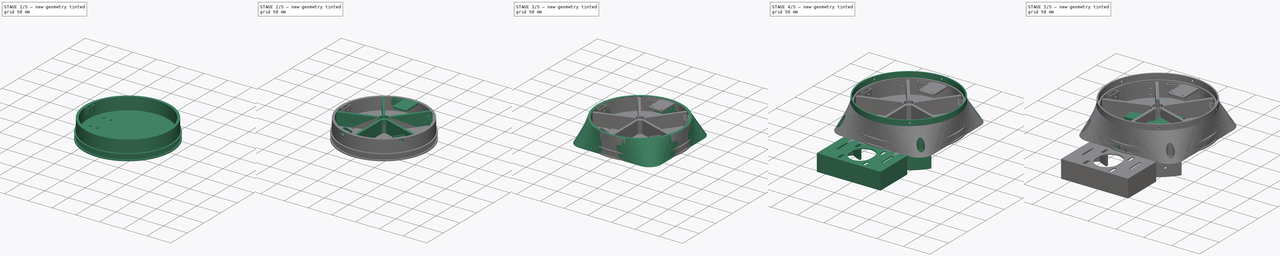
[diagram: build sequence overview — one tinted view per stage of 5, left to right]
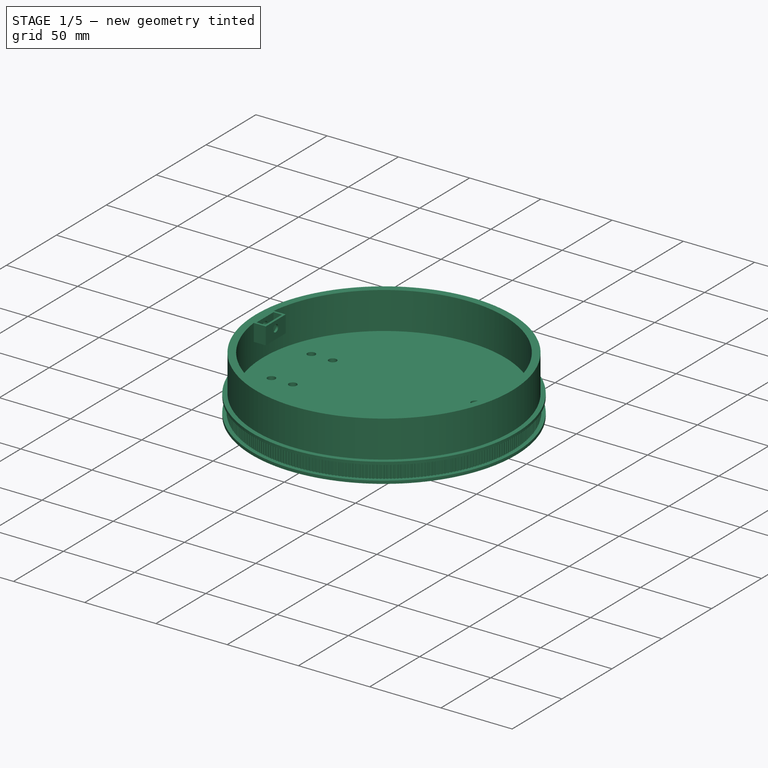
[diagram: stage 1 of 5 — iso view after this stage's code; geometry added in this stage tinted green]
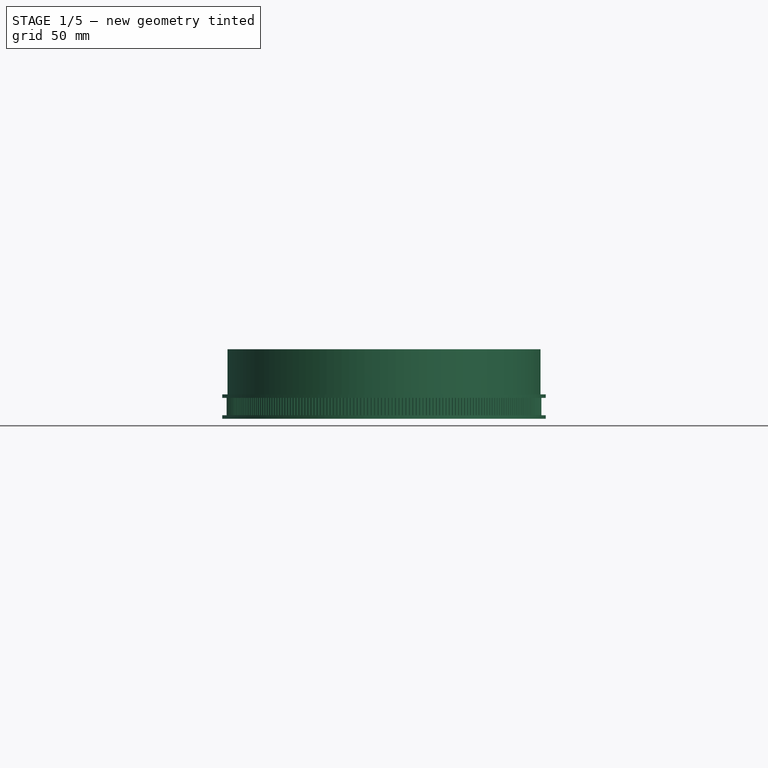
[diagram: stage 1 of 5 — front view after this stage's code; geometry added in this stage tinted green]
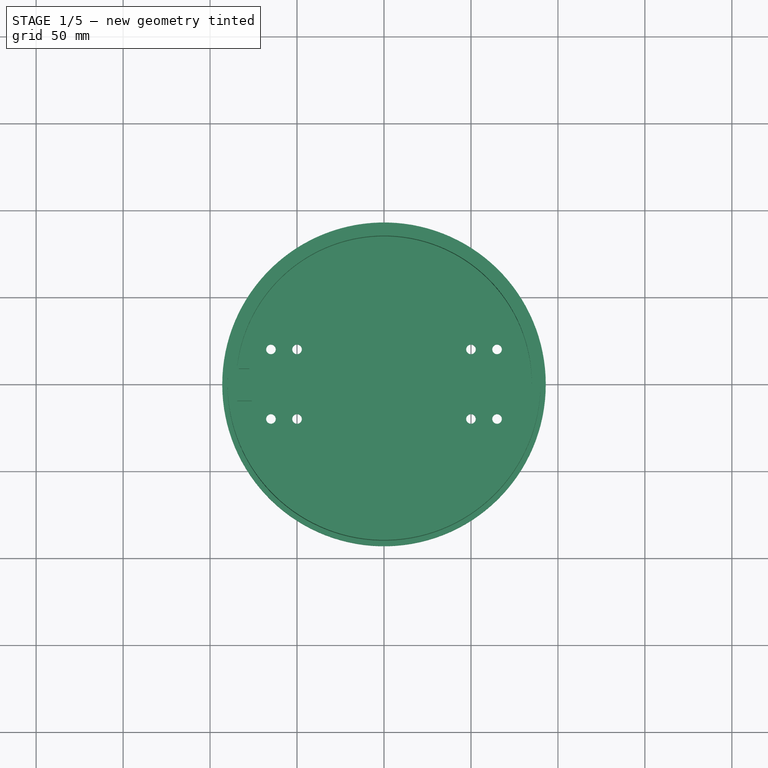
[diagram: stage 1 of 5 — top view after this stage's code; geometry added in this stage tinted green]
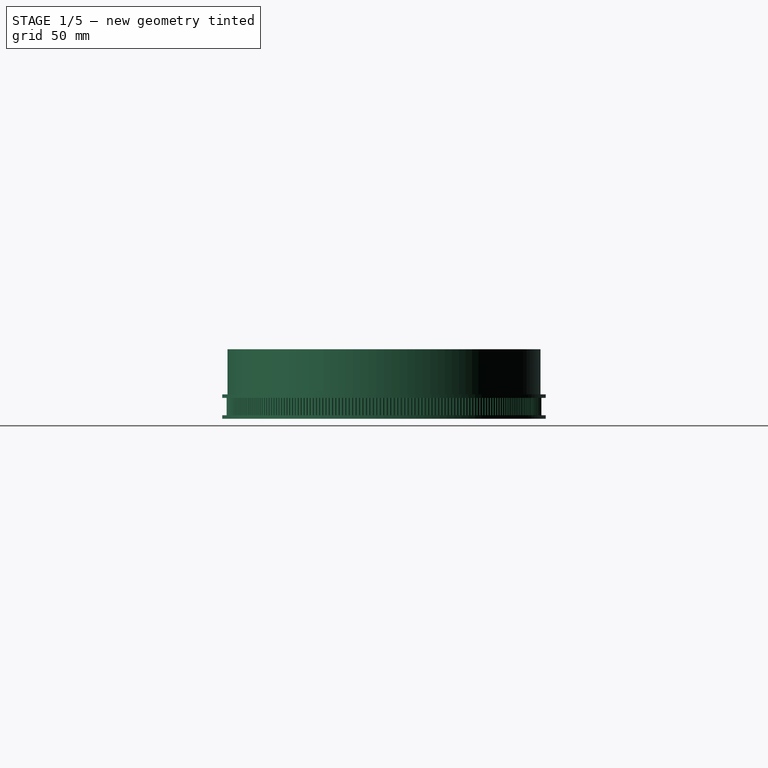
[diagram: stage 1 of 5 — right view after this stage's code; geometry added in this stage tinted green]
FCSTD DOCUMENT  (FreeCAD 0.21R33771 (Git))
Label: jrobot-x-axis-parts
License: All rights reserved
LicenseURL: http://en.wikipedia.org/wiki/All_rights_reserved
objects: PartDesign::CoordinateSystem×59, Sketcher::SketchObject×36, PartDesign::Pad×16, PartDesign::Pocket×14, PartDesign::PolarPattern×10, Part::Part2DObjectPython×9, PartDesign::Body×8, App::Part×8, PartDesign::Hole×7, App::DocumentObjectGroup×4, PartDesign::MultiTransform×3, PartDesign::Mirrored×2, PartDesign::Plane×2, PartDesign::LinearPattern×2, PartDesign::AdditiveLoft×1, Spreadsheet::Sheet×1, PartDesign::Revolution×1
note: 209 computed .brp shape members not serialized (recipe doc carries the construction recipe); baked Part::Feature solids carry a one-line shape summary decoded from their .brp

FEATURE [PartDesign::Body] Body016  label="B_X_Axis_BearingCap"
  Group = -> [Sketch075,Pad030,Sketch076,Pocket040,PolarPattern004]
  Origin = -> Origin043
  Tip = -> PolarPattern004
FEATURE [App::Part] Part018  label="P_X_Axis_BearingCap"
  DrawingName = jrobot-x-axis-parts.FCStd
  Group = -> [Body016,LCS_X_Axis_Base_BearingCap_Bottom,LCS_X_Axis_Base_BearingCap_To]
  Origin = -> Origin042
  PartDescription = B_X_Axis_BearingCap
  PartID = jrobot-x-axis-parts
FEATURE [Sketcher::SketchObject] Sketch084  label="S_X_Axis_Base_Base"
  FullyConstrained = true
  expr: Constraints[12] = <<S_X_Axis_Master_Sketch>>.Constraints.OuterRadius * 2 - 20 mm
  expr: Constraints[13] = <<S_X_Axis_Master_Sketch>>.Constraints.OuterRadius * 2
  sketch-geometry (26):
    g0: LineSegment StartX=-80 StartY=45 StartZ=0 EndX=-80 EndY=-45 EndZ=0
    g1: LineSegment StartX=-45 StartY=-80 StartZ=0 EndX=45 EndY=-80 EndZ=0
    g2: LineSegment StartX=80 StartY=-45 StartZ=0 EndX=80 EndY=45 EndZ=0
    g3: LineSegment StartX=45 StartY=80 StartZ=0 EndX=-45 EndY=80 EndZ=0
    g4: GeomPoint X=0 Y=0 Z=0
    g5: LineSegment StartX=-90 StartY=64.545 StartZ=0 EndX=-90 EndY=-64.545 EndZ=0
    g6: LineSegment StartX=-64.545 StartY=-90 StartZ=0 EndX=64.545 EndY=-90 EndZ=0
    g7: LineSegment StartX=90 StartY=-64.545 StartZ=0 EndX=90 EndY=64.545 EndZ=0
    g8: LineSegment StartX=64.545 StartY=90 StartZ=0 EndX=-64.545 EndY=90 EndZ=0
    g9: GeomPoint X=0 Y=0 Z=0
    g10: ArcOfCircle CenterX=-45 CenterY=-45 CenterZ=0 NormalX=0 NormalY=0 NormalZ=1 AngleXU=0 Radius=35 StartAngle=3.14159 EndAngle=4.71239
    g11: GeomPoint X=-80 Y=-80 Z=0
    g12: ArcOfCircle CenterX=45 CenterY=-45 CenterZ=0 NormalX=0 NormalY=0 NormalZ=1 AngleXU=0 Radius=35 StartAngle=4.71239 EndAngle=6.28319
    g13: GeomPoint X=80 Y=-80 Z=0
    g14: ArcOfCircle CenterX=-45 CenterY=45 CenterZ=0 NormalX=0 NormalY=0 NormalZ=1 AngleXU=0 Radius=35 StartAngle=1.5708 EndAngle=3.14159
    g15: GeomPoint X=-80 Y=80 Z=0
    g16: ArcOfCircle CenterX=45 CenterY=45 CenterZ=0 NormalX=0 NormalY=0 NormalZ=1 AngleXU=0 Radius=35 StartAngle=0 EndAngle=1.5708
    g17: GeomPoint X=80 Y=80 Z=0
    g18: ArcOfCircle CenterX=-64.545 CenterY=64.545 CenterZ=0 NormalX=0 NormalY=0 NormalZ=1 AngleXU=0 Radius=25.455 StartAngle=1.5708 EndAngle=3.14159
    g19: GeomPoint X=-90 Y=90 Z=0
    g20: ArcOfCircle CenterX=64.545 CenterY=64.545 CenterZ=0 NormalX=0 NormalY=0 NormalZ=1 AngleXU=0 Radius=25.455 StartAngle=0 EndAngle=1.5708
    g21: GeomPoint X=90 Y=90 Z=0
    g22: ArcOfCircle CenterX=64.545 CenterY=-64.545 CenterZ=0 NormalX=0 NormalY=0 NormalZ=1 AngleXU=0 Radius=25.455 StartAngle=4.71239 EndAngle=6.28319
    g23: GeomPoint X=90 Y=-90 Z=0
    g24: ArcOfCircle CenterX=-64.545 CenterY=-64.545 CenterZ=0 NormalX=0 NormalY=0 NormalZ=1 AngleXU=0 Radius=25.455 StartAngle=3.14159 EndAngle=4.71239
    g25: GeomPoint X=-90 Y=-90 Z=0
  constraints (56):
    c: Horizontal(g1)
    c: Horizontal(g3)
    c: Vertical(g0)
    c: Vertical(g2)
    c: Symmetric(g13,g15,g4)
    c: Coincident(g4,g-1)
    c: Horizontal(g6)
    c: Horizontal(g8)
    c: Vertical(g5)
    c: Vertical(g7)
    c: Symmetric(g23,g19,g9)
    c: Coincident(g9,g4)
    c: DistanceX(g11,g13) = 160
    c: DistanceX(g25,g23) = 180
    c: PointOnObject(g11,g0)
    c: PointOnObject(g11,g1)
    c: Tangent(g0,g10) = -1.5708
    c: Tangent(g1,g10) = -1.5708
    c: PointOnObject(g13,g1)
    c: PointOnObject(g13,g2)
    c: Tangent(g1,g12) = -1.5708
    c: Tangent(g2,g12) = -1.5708
    c: PointOnObject(g15,g0)
    c: PointOnObject(g15,g3)
    c: Tangent(g0,g14) = -1.5708
    c: Tangent(g3,g14) = -1.5708
    c: PointOnObject(g17,g2)
    c: PointOnObject(g17,g3)
    c: Tangent(g2,g16) = -1.5708
    c: Tangent(g3,g16) = -1.5708
    c: Equal(g14,g16)
    c: Equal(g16,g12)
    c: Equal(g12,g10)
    c: Equal(g1,g0)
    c: Diameter(g10) = 70
    c: PointOnObject(g19,g5)
    c: PointOnObject(g19,g8)
    c: Tangent(g5,g18) = -1.5708
    c: Tangent(g8,g18) = -1.5708
    c: PointOnObject(g21,g7)
    c: PointOnObject(g21,g8)
    c: Tangent(g7,g20) = -1.5708
    c: Tangent(g8,g20) = -1.5708
    c: PointOnObject(g23,g6)
    c: PointOnObject(g23,g7)
    c: Tangent(g6,g22) = -1.5708
    c: Tangent(g7,g22) = -1.5708
    c: PointOnObject(g25,g5)
    c: PointOnObject(g25,g6)
    c: Tangent(g5,g24) = -1.5708
    c: Tangent(g6,g24) = -1.5708
    c: Equal(g24,g22)
    c: Equal(g22,g20)
    c: Equal(g20,g18)
    c: Diameter(g24) = 50.91
    c: Equal(g5,g8)
FEATURE [Sketcher::SketchObject] Sketch085  label="S_X_Axis_Base_Base_Top"
  FullyConstrained = true
  expr: Constraints[2] = <<S_X_Axis_Master_Sketch>>.Constraints.OuterRadius * 2
  expr: Constraints[3] = <<S_X_Axis_Master_Sketch>>.Constraints.InnerRadius * 2
  sketch-geometry (3):
    g0: Circle CenterX=0 CenterY=0 CenterZ=0 NormalX=0 NormalY=0 NormalZ=1 AngleXU=0 Radius=85
    g1: Circle CenterX=0 CenterY=0 CenterZ=0 NormalX=0 NormalY=0 NormalZ=1 AngleXU=0 Radius=90
    g2: LineSegment StartX=0 StartY=0 StartZ=0 EndX=60.2218 EndY=66.883 EndZ=0
  constraints (7):
    c: Coincident(g0,g-1)
    c: Coincident(g1,g0)
    c: Diameter(g1) = 180
    c: Diameter(g0) = 170
    c: Coincident(g2,g0)
    c: PointOnObject(g2,g1)
    c: Angle(g2,g-2) = 0.733038  'MotorMountHoleAngle'
FEATURE [Sketcher::SketchObject] Sketch086  label="S_X_Axis_Master_Sketch"
  FullyConstrained = false
  MapMode = 5
  Placement = pos=(0,0,0) rot=(1,0,0;1.5708rad)
  Support = -> [XZ_Plane046]
  expr: .Constraints.TopHeight = .Constraints.BearingOD / 2 - 2 mm
  sketch-geometry (20):
    g0: LineSegment StartX=0 StartY=0 StartZ=0 EndX=90 EndY=0 EndZ=0
    g1: LineSegment StartX=90 StartY=0 StartZ=0 EndX=90 EndY=10 EndZ=0
    g2: LineSegment StartX=90 StartY=10 StartZ=0 EndX=90 EndY=20 EndZ=0
    g3: LineSegment StartX=90 StartY=20 StartZ=0 EndX=90 EndY=34 EndZ=0
    g4: LineSegment StartX=90 StartY=34 StartZ=0 EndX=90 EndY=40 EndZ=0
    g5: LineSegment StartX=90 StartY=40 StartZ=0 EndX=0 EndY=40 EndZ=0
    g6: LineSegment StartX=0 StartY=40 StartZ=0 EndX=0 EndY=0 EndZ=0
    g7: LineSegment StartX=0 StartY=25 StartZ=0 EndX=85 EndY=25 EndZ=0
    g8: LineSegment StartX=85 StartY=25 StartZ=0 EndX=85 EndY=10 EndZ=0
    g9: LineSegment StartX=85 StartY=10 StartZ=0 EndX=0 EndY=10 EndZ=0
    g10: LineSegment StartX=0 StartY=10 StartZ=0 EndX=0 EndY=25 EndZ=0
    g11: LineSegment StartX=37.6847 StartY=84.4295 StartZ=0 EndX=42.6847 EndY=84.4295 EndZ=0
    g12: LineSegment StartX=42.6847 StartY=84.4295 StartZ=0 EndX=42.6847 EndY=68.4295 EndZ=0
    g13: LineSegment StartX=42.6847 StartY=68.4295 StartZ=0 EndX=37.6847 EndY=68.4295 EndZ=0
    g14: LineSegment StartX=37.6847 StartY=68.4295 StartZ=0 EndX=37.6847 EndY=84.4295 EndZ=0
    g15: LineSegment StartX=45.6597 StartY=78.601 StartZ=0 EndX=51.0214 EndY=78.601 EndZ=0
    g16: LineSegment StartX=51.0214 StartY=78.601 StartZ=0 EndX=51.0214 EndY=73.601 EndZ=0
    g17: LineSegment StartX=51.0214 StartY=73.601 StartZ=0 EndX=45.6597 EndY=73.601 EndZ=0
    g18: LineSegment StartX=45.6597 StartY=73.601 StartZ=0 EndX=45.6597 EndY=78.601 EndZ=0
    g19: LineSegment StartX=90 StartY=0 StartZ=0 EndX=90 EndY=-42 EndZ=0
  constraints (56):
    c: Coincident(g-1,g0)
    c: PointOnObject(g0,g-1)
    c: Coincident(g0,g1)
    c: Vertical(g1)
    c: Coincident(g1,g2)
    c: Vertical(g2)
    c: Coincident(g2,g3)
    c: Vertical(g3)
    c: Coincident(g3,g4)
    c: Vertical(g4)
    c: Coincident(g4,g5)
    c: PointOnObject(g5,g-2)
    c: Horizontal(g5)
    c: Coincident(g5,g6)
    c: Coincident(g6,g0)
    c: DistanceY(g0,g4) = 40  'Height'
    c: DistanceX(g0,g0) = 90  'OuterRadius'
    c: DistanceY(g4,g4) = 6  'TopHeight'
    c: DistanceY(g1,g1) = 10  'Overlap'
    c: DistanceY(g1,g2) = 10  'BaseTopHeight'
    c: DistanceY(g2,g3) = 14  'TopBottomHeight'
    c: Coincident(g7,g8)
    c: Coincident(g8,g9)
    c: Coincident(g9,g10)
    c: Coincident(g10,g7)
    c: Horizontal(g7)
    c: Horizontal(g9)
    c: Vertical(g8)
    c: Vertical(g10)
    c: PointOnObject(g7,g6)
    c: DistanceX(g7,g2) = 5  'WallThickness'
    c: DistanceX(g9,g8) = 85  'InnerRadius'
    c: DistanceY(g8,g8) = 15  'DummyHeight'
    c: DistanceY(g0,g9) = 10  'DummyHeight2'
    c: Coincident(g11,g12)
    c: Coincident(g12,g13)
    c: Coincident(g13,g14)
    c: Coincident(g14,g11)
    c: Horizontal(g11)
    c: Horizontal(g13)
    c: Vertical(g12)
    c: Vertical(g14)
    c: DistanceX(g11,g11) = 5  'BearingWidth'
    c: DistanceY(g14,g14) = 16  'BearingOD'
    c: Coincident(g15,g16)
    c: Coincident(g16,g17)
    c: Coincident(g17,g18)
    c: Coincident(g18,g15)
    c: Horizontal(g15)
    c: Horizontal(g17)
    c: Vertical(g16)
    c: Vertical(g18)
    c: DistanceY(g16,g16) = 5  'BearingID'
    c: Coincident(g19,g0)
    c: Vertical(g19)
    c: DistanceY(g19,g19) = 42  'BaseHeight'
FEATURE [Sketcher::SketchObject] Sketch089  label="S_X_Axis_Top_VerticalBearing_Bolt"
  AttachmentOffset = pos=(0,35,-90) rot=(0,0,1;0rad)
  FullyConstrained = true
  MapMode = 5
  Placement = pos=(-90,2.78e-14,35) rot=(0.57735,0.57735,0.57735;2.0944rad)
  Support = -> [YZ_Plane046]
  expr: .AttachmentOffset.Base.y = <<S_X_Axis_Master_Sketch>>.Constraints.Height - <<S_X_Axis_Master_Sketch>>.Constraints.BearingOD / 2 + <<S_X_Axis_Master_Sketch>>.Constraints.BearingID / 2 + 0.5 mm
  expr: .AttachmentOffset.Base.z = -<<S_X_Axis_Master_Sketch>>.Constraints.OuterRadius
  sketch-geometry (1):
    g0: Circle CenterX=0 CenterY=0 CenterZ=0 NormalX=0 NormalY=0 NormalZ=1 AngleXU=0 Radius=2.5
  constraints (2):
    c: Coincident(g0,g-1)
    c: Diameter(g0) = 5
FEATURE [Sketcher::SketchObject] Sketch090  label="S_X_Axis_Top_VerticalBearing_BoltHead"
  AttachmentOffset = pos=(0,35,-90) rot=(0,0,1;0rad)
  FullyConstrained = true
  MapMode = 5
  Placement = pos=(-90,2.78e-14,35) rot=(0.57735,0.57735,0.57735;2.0944rad)
  Support = -> [YZ_Plane046]
  expr: .AttachmentOffset.Base.y = <<S_X_Axis_Master_Sketch>>.Constraints.Height - <<S_X_Axis_Master_Sketch>>.Constraints.BearingOD / 2 + <<S_X_Axis_Master_Sketch>>.Constraints.BearingID / 2 + 0.5 mm
  expr: .AttachmentOffset.Base.z = -<<S_X_Axis_Master_Sketch>>.Constraints.OuterRadius
  sketch-geometry (1):
    g0: Circle CenterX=0 CenterY=0 CenterZ=0 NormalX=0 NormalY=0 NormalZ=1 AngleXU=0 Radius=4.5
  constraints (2):
    c: Coincident(g0,g-1)
    c: Diameter(g0) = 9
FEATURE [Sketcher::SketchObject] Sketch091  label="S_X_Axis_Top_LimitSwitch_Holes"
  AttachmentOffset = pos=(0,0,40) rot=(0,0,1;0rad)
  FullyConstrained = true
  MapMode = 5
  Placement = pos=(0,0,40) rot=(0,0,1;0rad)
  Support = -> [XY_Plane046]
  expr: .AttachmentOffset.Base.z = <<S_X_Axis_Master_Sketch>>.Constraints.Height
  sketch-geometry (4):
    g0: Circle CenterX=-9.625 CenterY=50 CenterZ=0 NormalX=0 NormalY=0 NormalZ=1 AngleXU=0 Radius=1.5
    g1: Circle CenterX=9.625 CenterY=50 CenterZ=0 NormalX=0 NormalY=0 NormalZ=1 AngleXU=0 Radius=1.5
    g2: LineSegment StartX=-9.625 StartY=50 StartZ=0 EndX=0 EndY=50 EndZ=0
    g3: LineSegment StartX=0 StartY=50 StartZ=0 EndX=9.625 EndY=50 EndZ=0
  constraints (11):
    c: Distance(g1,g0) = 19.25  'LimitSwitchSeparation'
    c: Equal(g0,g1)
    c: Diameter(g0) = 3
    c: Horizontal(g0,g1)
    c: Coincident(g2,g0)
    c: PointOnObject(g2,g-2)
    c: Coincident(g3,g2)
    c: Coincident(g3,g1)
    c: Equal(g3,g2)
    c: Horizontal(g3)
    c: DistanceY(g-1,g0) = 50  'LimitSwitchOffset'
FEATURE [Sketcher::SketchObject] Sketch092  label="S_X_Axis_Top_BearingMount_Top"
  AttachmentOffset = pos=(0,0,40) rot=(0,0,1;0rad)
  FullyConstrained = true
  MapMode = 5
  Placement = pos=(0,0,40) rot=(0,0,1;0rad)
  Support = -> [XY_Plane046]
  expr: .AttachmentOffset.Base.z = <<S_X_Axis_Master_Sketch>>.Constraints.Height
  sketch-geometry (1):
    g0: Circle CenterX=0 CenterY=0 CenterZ=0 NormalX=0 NormalY=0 NormalZ=1 AngleXU=0 Radius=8
  constraints (2):
    c: Coincident(g0,g-1)
    c: Diameter(g0) = 16
FEATURE [Sketcher::SketchObject] Sketch093  label="S_X_Axis_Top_BearingMount_Bottom"
  FullyConstrained = true
  MapMode = 5
  Support = -> [XY_Plane046]
  sketch-geometry (1):
    g0: Circle CenterX=0 CenterY=0 CenterZ=0 NormalX=0 NormalY=0 NormalZ=1 AngleXU=0 Radius=8
  constraints (2):
    c: Coincident(g0,g-1)
    c: Diameter(g0) = 16
FEATURE [Sketcher::SketchObject] Sketch094  label="S_X_Axis_Top_BearingMount_Shaft"
  FullyConstrained = true
  MapMode = 5
  Support = -> [XY_Plane046]
  sketch-geometry (1):
    g0: Circle CenterX=0 CenterY=0 CenterZ=0 NormalX=0 NormalY=0 NormalZ=1 AngleXU=0 Radius=3
  constraints (2):
    c: Coincident(g0,g-1)
    c: Diameter(g0) = 6
FEATURE [Sketcher::SketchObject] Sketch095  label="S_X_Axis_Top_BearingMount_Body"
  FullyConstrained = true
  MapMode = 5
  Support = -> [XY_Plane046]
  sketch-geometry (1):
    g0: Circle CenterX=0 CenterY=0 CenterZ=0 NormalX=0 NormalY=0 NormalZ=1 AngleXU=0 Radius=10
  constraints (2):
    c: Coincident(g0,g-1)
    c: Diameter(g0) = 20
FEATURE [Sketcher::SketchObject] Sketch096  label="S_X_Axis_Top_VerticalBearing_Body"
  AttachmentOffset = pos=(-85,0,28) rot=(0,0,1;0rad)
  FullyConstrained = true
  MapMode = 5
  Placement = pos=(-85,0,28) rot=(0,0,1;0rad)
  Support = -> [XY_Plane046]
  expr: .AttachmentOffset.Base.x = -<<S_X_Axis_Master_Sketch>>.Constraints.InnerRadius
  expr: .AttachmentOffset.Base.z = <<S_X_Axis_Master_Sketch>>.Constraints.Height - <<S_X_Axis_Master_Sketch>>.Constraints.BearingOD * 0.75
  expr: Constraints[18] = <<S_X_Axis_Master_Sketch>>.Constraints.BearingWidth + 1 mm
  expr: Constraints[19] = <<S_X_Axis_Master_Sketch>>.Constraints.BearingOD + 1 mm
  expr: Constraints[23] = (<<S_X_Axis_Master_Sketch>>.Constraints.BearingWidth + 4 mm) / 2
  expr: Constraints[8] = <<S_X_Axis_Master_Sketch>>.Constraints.BearingOD + 4 mm
  expr: Constraints[9] = <<S_X_Axis_Master_Sketch>>.Constraints.BearingWidth + 4 mm
  sketch-geometry (9):
    g0: LineSegment StartX=0 StartY=10 StartZ=0 EndX=9 EndY=10 EndZ=0
    g1: LineSegment StartX=9 StartY=10 StartZ=0 EndX=9 EndY=-10 EndZ=0
    g2: LineSegment StartX=9 StartY=-10 StartZ=0 EndX=0 EndY=-10 EndZ=0
    g3: LineSegment StartX=0 StartY=-10 StartZ=0 EndX=0 EndY=10 EndZ=0
    g4: LineSegment StartX=1.5 StartY=8.5 StartZ=0 EndX=7.5 EndY=8.5 EndZ=0
    g5: LineSegment StartX=7.5 StartY=8.5 StartZ=0 EndX=7.5 EndY=-8.5 EndZ=0
    g6: LineSegment StartX=7.5 StartY=-8.5 StartZ=0 EndX=1.5 EndY=-8.5 EndZ=0
    g7: LineSegment StartX=1.5 StartY=-8.5 StartZ=0 EndX=1.5 EndY=8.5 EndZ=0
    g8: GeomPoint X=4.5 Y=0 Z=0
  constraints (24):
    c: Coincident(g0,g1)
    c: Coincident(g1,g2)
    c: Coincident(g2,g3)
    c: Coincident(g3,g0)
    c: Horizontal(g0)
    c: Horizontal(g2)
    c: Vertical(g1)
    c: Vertical(g3)
    c: DistanceY(g1,g1) = 20
    c: DistanceX(g2,g2) = 9
    c: Coincident(g4,g5)
    c: Coincident(g5,g6)
    c: Coincident(g6,g7)
    c: Coincident(g7,g4)
    c: Horizontal(g4)
    c: Horizontal(g6)
    c: Vertical(g5)
    c: Vertical(g7)
    c: DistanceX(g4,g4) = 6
    c: DistanceY(g5,g5) = 17
    c: PointOnObject(g8,g-1)
    c: Symmetric(g4,g5,g8)
    c: Symmetric(g0,g1,g8)
    c: DistanceX(g-1,g8) = 4.5
FEATURE [Sketcher::SketchObject] Sketch097  label="S_X_Axis_Top_BearingMount_Pillar"
  ExternalGeometry = -> [Sketch095]
  FullyConstrained = true
  MapMode = 5
  Support = -> [XY_Plane046]
  expr: Constraints[15] = <<S_X_Axis_Master_Sketch>>.Constraints.InnerRadius
  sketch-geometry (6):
    g0: LineSegment StartX=2.5 StartY=-85 StartZ=0 EndX=-2.5 EndY=-85 EndZ=0
    g1: LineSegment StartX=-2.5 StartY=-85 StartZ=0 EndX=-2.5 EndY=-9.68246 EndZ=0
    g2: LineSegment StartX=-2.5 StartY=-9.68246 StartZ=0 EndX=2.5 EndY=-9.68246 EndZ=0
    g3: LineSegment StartX=2.5 StartY=-9.68246 StartZ=0 EndX=2.5 EndY=-85 EndZ=0
    g4: LineSegment StartX=2.5 StartY=-9.68246 StartZ=0 EndX=0 EndY=0 EndZ=0
    g5: LineSegment StartX=0 StartY=0 StartZ=0 EndX=-2.5 EndY=-9.68246 EndZ=0
  constraints (16):
    c: Coincident(g0,g1)
    c: Coincident(g1,g2)
    c: Coincident(g2,g3)
    c: Coincident(g3,g0)
    c: Horizontal(g0)
    c: Horizontal(g2)
    c: Vertical(g1)
    c: Vertical(g3)
    c: PointOnObject(g2,g-3)
    c: PointOnObject(g1,g-3)
    c: Coincident(g4,g2)
    c: Coincident(g4,g-3)
    c: Coincident(g5,g4)
    c: Coincident(g5,g1)
    c: DistanceX(g2,g2) = 5  'PillarWidth'
    c: DistanceY(g0,g4) = 85
FEATURE [Sketcher::SketchObject] Sketch098  label="S_X_Axis_Top_LimitSwitch_Body"
  AttachmentOffset = pos=(0,0,40) rot=(0,0,1;0rad)
  FullyConstrained = true
  MapMode = 5
  Placement = pos=(0,0,40) rot=(0,0,1;0rad)
  Support = -> [XY_Plane046]
  expr: .AttachmentOffset.Base.z = <<S_X_Axis_Master_Sketch>>.Constraints.Height
  expr: Constraints[7] = <<S_X_Axis_Master_Sketch>>.Constraints.InnerRadius
  sketch-geometry (7):
    g0: ArcOfCircle CenterX=-9.625 CenterY=50 CenterZ=0 NormalX=0 NormalY=0 NormalZ=1 AngleXU=0 Radius=5 StartAngle=3.14159 EndAngle=4.71239
    g1: ArcOfCircle CenterX=9.625 CenterY=50 CenterZ=0 NormalX=0 NormalY=0 NormalZ=1 AngleXU=0 Radius=5 StartAngle=4.71239 EndAngle=6.28319
    g2: LineSegment StartX=-14.625 StartY=85 StartZ=0 EndX=0 EndY=85 EndZ=0
    g3: LineSegment StartX=0 StartY=85 StartZ=0 EndX=14.625 EndY=85 EndZ=0
    g4: LineSegment StartX=-14.625 StartY=85 StartZ=0 EndX=-14.625 EndY=50 EndZ=0
    g5: LineSegment StartX=14.625 StartY=50 StartZ=0 EndX=14.625 EndY=85 EndZ=0
    g6: LineSegment StartX=-9.625 StartY=45 StartZ=0 EndX=9.625 EndY=45 EndZ=0
  constraints (19):
    c: Equal(g1,g0)
    c: PointOnObject(g2,g-2)
    c: Coincident(g3,g2)
    c: Equal(g3,g2)
    c: Horizontal(g3)
    c: Horizontal(g2)
    c: Diameter(g1) = 10
    c: DistanceY(g-1,g2) = 85
    c: Coincident(g4,g2)
    c: Vertical(g4)
    c: Coincident(g5,g3)
    c: Vertical(g5)
    c: Horizontal(g6)
    c: Tangent(g4,g0) = -1.5708
    c: Tangent(g5,g1) = -1.5708
    c: Tangent(g6,g1) = -1.5708
    c: Tangent(g6,g0) = -1.5708
    c: DistanceX(g0,g1) = 19.25
    c: DistanceY(g-1,g1) = 50
FEATURE [Sketcher::SketchObject] Sketch099  label="S_X_Axis_Base_Overlap"
  FullyConstrained = true
  expr: Constraints[2] = <<S_X_Axis_Master_Sketch>>.Constraints.OuterRadius * 2
  expr: Constraints[3] = <<S_X_Axis_Master_Sketch>>.Constraints.InnerRadius * 2 + +<<S_X_Axis_Master_Sketch>>.Constraints.WallThickness
  sketch-geometry (2):
    g0: Circle CenterX=0 CenterY=0 CenterZ=0 NormalX=0 NormalY=0 NormalZ=1 AngleXU=0 Radius=87.5
    g1: Circle CenterX=0 CenterY=0 CenterZ=0 NormalX=0 NormalY=0 NormalZ=1 AngleXU=0 Radius=90
  constraints (4):
    c: Coincident(g0,g-1)
    c: Coincident(g1,g0)
    c: Diameter(g1) = 180
    c: Diameter(g0) = 175
FEATURE [Part::Part2DObjectPython] Clone2D  label="S_X_Axis_Base_Base_Top (2D)"  # Draft 2D object (typed FeaturePython)
  Fuse = false
  Objects = -> [Sketch085]
  Scale = (1,1,1)
  expr: .Placement.Base.z = 0
FEATURE [PartDesign::Pad] Pad  label="PAD_X_Axis_Top_Base_Top"
  Direction = (0,0,1)
  Length = 40
  Length2 = 10
  Profile = -> Clone2D
  Type = 0
  expr: Length = <<S_X_Axis_Master_Sketch>>.Constraints.Height
FEATURE [PartDesign::Pad] Pad031  label="PAD_X_Axis_Top_VerticalBearing_Body"
  BaseFeature = -> Pad
  Direction = (0,0,1)
  Length = 12
  Length2 = 10
  Profile = -> Sketch096
  ReferenceAxis = -> Sketch096 [N_Axis]
  Type = 0
  expr: Length = <<S_X_Axis_Master_Sketch>>.Constraints.BearingOD * 0.75
FEATURE [PartDesign::Pocket] Pocket041  label="POCKET_X_Axis_Top_VerticalBearing_Bolt"
  BaseFeature = -> Pad031
  Direction = (-1,2e-16,-3e-16)
  Length = 20
  Length2 = 5
  Profile = -> Sketch089
  ReferenceAxis = -> Sketch089 [N_Axis]
  Reversed = true
  Type = 0
FEATURE [PartDesign::Body] Body019  label="B_X_Axis_Belt"
  Group = -> [Sketch105,Pad037]
  Origin = -> Origin052
  Tip = -> Pad037
FEATURE [PartDesign::CoordinateSystem] LCS_X_Axis_Belt_Origin
  AttacherType = Attacher::AttachEngine3D
FEATURE [App::Part] Part021  label="P_X_Axis_Belt"
  DrawingName = jrobot-x-axis-parts.FCStd
  Group = -> [Body019,LCS_X_Axis_Belt_Origin]
  Origin = -> Origin051
  PartDescription = B_X_Axis_Belt
  PartID = jrobot-x-axis-parts
FEATURE [PartDesign::CoordinateSystem] LCS_X_Axis_Top_Rotor
  AttacherType = Attacher::AttachEngine3D
  Placement = pos=(0,0,43) rot=(0,0,1;0rad)
  expr: .Placement.Base.z = <<S_X_Axis_Master_Sketch>>.Constraints.Height + <<S_X_Axis_Master_Sketch>>.Constraints.BearingID / 2 + 0.5 mm
FEATURE [Sketcher::SketchObject] Sketch106  label="S_X_Axis_Rotor_Profile"
  FullyConstrained = true
  MapMode = 5
  Placement = pos=(0,0,0) rot=(1,0,0;1.5708rad)
  Support = -> [XZ_Plane054]
  expr: .Constraints.RotorRadius = <<S_X_Axis_Master_Sketch>>.Constraints.OuterRadius
  sketch-geometry (10):
    g0: LineSegment StartX=93 StartY=0 StartZ=0 EndX=93 EndY=2 EndZ=0
    g1: LineSegment StartX=93 StartY=2 StartZ=0 EndX=90 EndY=2 EndZ=0
    g2: LineSegment StartX=90 StartY=2 StartZ=0 EndX=90 EndY=12 EndZ=0
    g3: LineSegment StartX=90 StartY=12 StartZ=0 EndX=93 EndY=12 EndZ=0
    g4: LineSegment StartX=93 StartY=12 StartZ=0 EndX=93 EndY=14 EndZ=0
    g5: LineSegment StartX=93 StartY=14 StartZ=0 EndX=0 EndY=14 EndZ=0
    g6: LineSegment StartX=0 StartY=14 StartZ=0 EndX=0 EndY=11 EndZ=0
    g7: LineSegment StartX=0 StartY=11 StartZ=0 EndX=76 EndY=11 EndZ=0
    g8: LineSegment StartX=76 StartY=11 StartZ=0 EndX=76 EndY=0 EndZ=0
    g9: LineSegment StartX=76 StartY=0 StartZ=0 EndX=93 EndY=0 EndZ=0
  constraints (33):
    c: PointOnObject(g0,g-1)
    c: Vertical(g0)
    c: Coincident(g0,g1)
    c: Horizontal(g1)
    c: Coincident(g1,g2)
    c: Vertical(g2)
    c: Coincident(g2,g3)
    c: Horizontal(g3)
    c: Coincident(g3,g4)
    c: Vertical(g4)
    c: Coincident(g4,g5)
    c: Horizontal(g5)
    c: DistanceX(g-1,g1) = 90  'RotorRadius'
    c: DistanceY(g2,g2) = 10
    c: Equal(g4,g0)
    c: Vertical(g3,g0)
    c: DistanceY(g4,g4) = 2
    c: DistanceX(g3,g3) = 3
    c: DistanceY(g-1,g0) = 2  'BeltOffset'
    c: Coincident(g5,g6)
    c: Vertical(g6)
    c: Coincident(g6,g7)
    c: Horizontal(g7)
    c: Coincident(g7,g8)
    c: Vertical(g8)
    c: Coincident(g8,g9)
    c: Coincident(g9,g0)
    c: Horizontal(g9)
    c: DistanceY(g6,g6) = 3  'TopThickness'
    c: DistanceX(g8,g0) = 17
    c: DistanceY(g-1,g5) = 14  'Height'
    c: Vertical(g6,g-1)
    c: DistanceX(g-1,g8) = 76  'LipRadius'
FEATURE [PartDesign::Revolution] Revolution  label="ROT_X_Axis_Rotor_Profile"
  Angle = 360
  Axis = (0,-2e-16,1)
  Base = (0,0,0)
  Placement = pos=(0,0,0) rot=(1,0,0;1.5708rad)
  Profile = -> Sketch106
  ReferenceAxis = -> Sketch106 [V_Axis]
  Reversed = true
FEATURE [PartDesign::Body] Body021  label="B_X_Axis_BeltTensioner"
  Group = -> [Sketch107,Pad038,Sketch108,Pad039,Sketch109,Pad040,Sketch110,Hole002]
  Origin = -> Origin056
  Tip = -> Hole002
FEATURE [PartDesign::CoordinateSystem] LCS_X_Axis_BeltTensioner_Bolt0
  AttacherType = Attacher::AttachEngine3D
  AttachmentOffset = pos=(0,0,0) rot=(0,1,0;3.14159rad)
  MapMode = 11
  Placement = pos=(-42.5,0,-2) rot=(0,0,1;1.5708rad)
  Support = -> [Hole002]
FEATURE [PartDesign::CoordinateSystem] LCS_X_Axis_BeltTensioner_Bolt1
  AttacherType = Attacher::AttachEngine3D
  AttachmentOffset = pos=(0,0,0) rot=(0,1,0;3.14159rad)
  MapMode = 11
  Placement = pos=(42.5,0,-2) rot=(0,0,1;1.5708rad)
  Support = -> [Hole002]
FEATURE [PartDesign::CoordinateSystem] LCS_X_Axis_BeltTensioner_IdlerBolt0
  AttacherType = Attacher::AttachEngine3D
  MapMode = 11
  Placement = pos=(-15,7.5,26) rot=(0,0,1;1.5708rad)
  Support = -> [Hole002]
FEATURE [PartDesign::CoordinateSystem] LCS_X_Axis_BeltTensioner_IdlerBolt1
  AttacherType = Attacher::AttachEngine3D
  MapMode = 11
  Placement = pos=(15,7.5,26) rot=(0,0,1;1.5708rad)
  Support = -> [Hole002]
FEATURE [App::Part] Part023  label="P_X_Axis_BeltTensioner"
  DrawingName = jrobot-x-axis-parts.FCStd
  Group = -> [Body021,LCS_X_Axis_BeltTensioner_Origin,LCS_X_Axis_BeltTensioner_Idler0,LCS_X_Axis_BeltTensioner_Idler1,LCS_X_Axis_BeltTensioner_Bolt0,LCS_X_Axis_BeltTensioner_Bolt1,LCS_X_Axis_BeltTensioner_IdlerBolt0,LCS_X_Axis_BeltTensioner_IdlerBolt1]
  Origin = -> Origin055
  PartDescription = B_X_Axis_BeltTensioner
  PartID = jrobot-x-axis-parts
FEATURE [Sketcher::SketchObject] Sketch111  label="S_X_Axis_Rotor_Switch"
  FullyConstrained = true
  MapMode = 5
  Support = -> [XY_Plane054]
  sketch-geometry (5):
    g0: GeomPoint X=-9.73863 Y=42.9087 Z=0
    g1: GeomPoint X=9.73863 Y=42.9087 Z=0
    g2: ArcOfCircle CenterX=0 CenterY=0 CenterZ=0 NormalX=0 NormalY=0 NormalZ=1 AngleXU=0 Radius=44 StartAngle=1.79398 EndAngle=7.6308
    g3: ArcOfCircle CenterX=-9e-15 CenterY=31.5 CenterZ=0 NormalX=0 NormalY=0 NormalZ=1 AngleXU=0 Radius=15 StartAngle=0.864209 EndAngle=2.27738
    g4: Circle CenterX=0 CenterY=0 CenterZ=0 NormalX=0 NormalY=0 NormalZ=1 AngleXU=0 Radius=42
  constraints (11):
    c: Horizontal(g0,g1)
    c: Coincident(g2,g-1)
    c: Coincident(g2,g0)
    c: Coincident(g2,g1)
    c: Coincident(g3,g2)
    c: Coincident(g3,g2)
    c: Coincident(g4,g2)
    c: Diameter(g2) = 88
    c: Diameter(g3) = 30
    c: Diameter(g4) = 84
    c: DistanceY(g2,g3) = 31.5
FEATURE [PartDesign::Pad] Pad041  label="PAD_X_Axis_Rotor_Switch"
  BaseFeature = -> Revolution
  Direction = (0,0,1)
  Length = 11
  Length2 = 10
  Placement = pos=(0,0,0) rot=(1,0,0;1.5708rad)
  Profile = -> Sketch111
  ReferenceAxis = -> Sketch111 [N_Axis]
  Type = 0
  expr: Length = <<S_X_Axis_Rotor_Profile>>.Constraints.Height - <<S_X_Axis_Rotor_Profile>>.Constraints.TopThickness
FEATURE [Sketcher::SketchObject] Sketch112  label="S_X_Axis_Top_LimitSwitch_CableHole"
  AttachmentOffset = pos=(0,0,-90) rot=(0,0,1;0rad)
  FullyConstrained = true
  MapMode = 5
  Placement = pos=(0,90,2e-14) rot=(1,0,0;1.5708rad)
  Support = -> [XZ_Plane046]
  expr: .AttachmentOffset.Base.z = -<<S_X_Axis_Master_Sketch>>.Constraints.OuterRadius
  sketch-geometry (1):
    g0: Circle CenterX=0 CenterY=20 CenterZ=0 NormalX=0 NormalY=0 NormalZ=1 AngleXU=0 Radius=5
  constraints (3):
    c: PointOnObject(g0,g-2)
    c: Diameter(g0) = 10
    c: DistanceY(g-1,g0) = 20
FEATURE [Sketcher::SketchObject] Sketch113  label="S_X_Axis_Rotor_ShaftHole"
  FullyConstrained = true
  MapMode = 5
  Support = -> [XY_Plane054]
  sketch-geometry (16):
    g0: ArcOfCircle CenterX=0 CenterY=0 CenterZ=0 NormalX=0 NormalY=0 NormalZ=1 AngleXU=0 Radius=3.5 StartAngle=1.936 EndAngle=4.34718
    g1: ArcOfCircle CenterX=0 CenterY=0 CenterZ=0 NormalX=0 NormalY=0 NormalZ=1 AngleXU=0 Radius=3.5 StartAngle=5.0776 EndAngle=7.48877
    g2: ArcOfCircle CenterX=0 CenterY=0 CenterZ=0 NormalX=0 NormalY=0 NormalZ=1 AngleXU=0 Radius=2.45 StartAngle=1.67302 EndAngle=4.61017
    g3: ArcOfCircle CenterX=0 CenterY=0 CenterZ=0 NormalX=0 NormalY=0 NormalZ=1 AngleXU=0 Radius=2.45 StartAngle=4.81461 EndAngle=7.75176
    g4: LineSegment StartX=-1.25 StartY=9.26917 StartZ=0 EndX=-0.25 EndY=9.26917 EndZ=0
    g5: LineSegment StartX=-0.25 StartY=9.26917 StartZ=0 EndX=-0.25 EndY=2.43721 EndZ=0
    g6: LineSegment StartX=-1.25 StartY=3.26917 StartZ=0 EndX=-1.25 EndY=9.26917 EndZ=0
    g7: LineSegment StartX=0.25 StartY=9.26917 StartZ=0 EndX=1.25 EndY=9.26917 EndZ=0
    g8: LineSegment StartX=1.25 StartY=9.26917 StartZ=0 EndX=1.25 EndY=3.26917 EndZ=0
    g9: LineSegment StartX=0.25 StartY=2.43721 StartZ=0 EndX=0.25 EndY=9.26917 EndZ=0
    g10: LineSegment StartX=-1.25 StartY=-3.26917 StartZ=0 EndX=-1.25 EndY=-9.26917 EndZ=0
    g11: LineSegment StartX=-1.25 StartY=-9.26917 StartZ=0 EndX=-0.25 EndY=-9.26917 EndZ=0
    g12: LineSegment StartX=-0.25 StartY=-9.26917 StartZ=0 EndX=-0.25 EndY=-2.43721 EndZ=0
    g13: LineSegment StartX=1.25 StartY=-3.26917 StartZ=0 EndX=1.25 EndY=-9.26917 EndZ=0
    g14: LineSegment StartX=1.25 StartY=-9.26917 StartZ=0 EndX=0.25 EndY=-9.26917 EndZ=0
    g15: LineSegment StartX=0.25 StartY=-9.26917 StartZ=0 EndX=0.25 EndY=-2.43721 EndZ=0
  constraints (48):
    c: Coincident(g0,g-1)
    c: Coincident(g1,g0)
    c: Coincident(g2,g0)
    c: Coincident(g3,g0)
    c: Equal(g3,g2)
    c: Equal(g1,g0)
    c: Diameter(g3) = 4.9
    c: Diameter(g1) = 7
    c: Horizontal(g3,g2)
    c: Horizontal(g3,g2)
    c: Coincident(g4,g5)
    c: Coincident(g6,g4)
    c: Horizontal(g4)
    c: Vertical(g5)
    c: Vertical(g6)
    c: Coincident(g5,g2)
    c: Coincident(g7,g8)
    c: Coincident(g9,g7)
    c: Horizontal(g7)
    c: Vertical(g8)
    c: Vertical(g9)
    c: Horizontal(g7,g4)
    c: Coincident(g1,g8)
    c: Equal(g7,g4)
    c: Coincident(g9,g3)
    c: Coincident(g0,g6)
    c: DistanceX(g4,g4) = 1
    c: DistanceX(g4,g7) = 0.5
    c: DistanceY(g0,g4) = 6
    c: Coincident(g10,g11)
    c: Coincident(g11,g12)
    c: Horizontal(g11)
    c: Vertical(g10)
    c: Vertical(g12)
    c: Coincident(g13,g14)
    c: Coincident(g14,g15)
    c: Horizontal(g14)
    c: Vertical(g13)
    c: Vertical(g15)
    c: Horizontal(g14,g11)
    c: Coincident(g13,g1)
    c: Coincident(g0,g10)
    c: Vertical(g0,g0)
    c: Vertical(g1,g1)
    c: Vertical(g3,g3)
    c: Coincident(g15,g3)
    c: Coincident(g2,g12)
    c: Equal(g6,g10)
FEATURE [PartDesign::Pad] Pad042  label="PAD_X_Axis_Rotor_ShaftHole"
  BaseFeature = -> Pad041
  Direction = (0,0,1)
  Length = 11
  Length2 = 10
  Placement = pos=(0,0,0) rot=(1,0,0;1.5708rad)
  Profile = -> Sketch113
  ReferenceAxis = -> Sketch113 [N_Axis]
  Type = 0
  expr: Length = <<S_X_Axis_Rotor_Profile>>.Constraints.Height - <<S_X_Axis_Rotor_Profile>>.Constraints.TopThickness
FEATURE [Sketcher::SketchObject] Sketch114  label="S_X_Axis_Rotor_BeltTooth"
  AttachmentOffset = pos=(0,90,2) rot=(0,0,1;0rad)
  FullyConstrained = true
  MapMode = 5
  Placement = pos=(0,90,2) rot=(0,0,1;0rad)
  Support = -> [XY_Plane054]
  expr: .AttachmentOffset.Base.y = <<S_X_Axis_Rotor_Profile>>.Constraints.RotorRadius
  expr: .AttachmentOffset.Base.z = <<S_X_Axis_Rotor_Profile>>.Constraints.BeltOffset
  sketch-geometry (1):
    g0: Circle CenterX=0 CenterY=0 CenterZ=0 NormalX=0 NormalY=0 NormalZ=1 AngleXU=0 Radius=0.5
  constraints (2):
    c: Coincident(g0,g-1)
    c: Diameter(g0) = 1
FEATURE [PartDesign::Pad] Pad043  label="PAD_X_Axis_Rotor_BeltTooth"
  BaseFeature = -> Pad042
  Direction = (0,0,1)
  Length = 10
  Length2 = 10
  Placement = pos=(0,0,0) rot=(1,0,0;1.5708rad)
  Profile = -> Sketch114
  ReferenceAxis = -> Sketch114 [N_Axis]
  Type = 0
FEATURE [PartDesign::PolarPattern] PolarPattern011  label="PAT_X_Axis_Rotor_BeltTeeth"
  Angle = 360
  Axis = -> Z_Axis054
  BaseFeature = -> Pad043
  Occurrences = 283
  Originals = -> [Pad043]
  Placement = pos=(0,0,0) rot=(1,0,0;1.5708rad)
  expr: Occurrences = round(<<S_X_Axis_Rotor_Profile>>.Constraints.RotorRadius * 3.14159265)
FEATURE [PartDesign::Body] Body018  label="B_X_Axis_MotorMount"
  Group = -> [Sketch103,Pad036,Sketch104,Sketch118,Pocket052,Pocket053,DatumPlane001,Clone2D009,Hole004,MultiTransform002,LinearPattern001,PolarPattern013]
  Origin = -> Origin049
  Tip = -> MultiTransform002
FEATURE [PartDesign::CoordinateSystem] LCS_X_Axis_MotorMount_Mount0
  AttacherType = Attacher::AttachEngine3D
  MapMode = 11
  Placement = pos=(-62.2084,-69.0894,-7.99947) rot=(0.26417,0.688187,-0.675731;3.64918rad)
  Support = -> [MultiTransform002]
FEATURE [PartDesign::CoordinateSystem] LCS_X_Axis_MotorMount_Mount1
  AttacherType = Attacher::AttachEngine3D
  MapMode = 11
  Placement = pos=(-62.2084,-69.0894,-17.9995) rot=(0.26417,0.688187,-0.675731;3.64918rad)
  Support = -> [MultiTransform002]
FEATURE [PartDesign::CoordinateSystem] LCS_X_Axis_MotorMount_Mount2
  AttacherType = Attacher::AttachEngine3D
  MapMode = 11
  Placement = pos=(62.2084,-69.0894,-7.99947) rot=(-0.26417,0.688187,-0.675731;2.634rad)
  Support = -> [MultiTransform002]
FEATURE [PartDesign::CoordinateSystem] LCS_X_Axis_MotorMount_Mount3
  AttacherType = Attacher::AttachEngine3D
  MapMode = 11
  Placement = pos=(62.2084,-69.0894,-17.9995) rot=(-0.26417,0.688187,-0.675731;2.634rad)
  Support = -> [MultiTransform002]
FEATURE [App::Part] Part020  label="P_X_Axis_MotorMount"
  DrawingName = jrobot-x-axis-parts.FCStd
  Group = -> [Body018,LCS_MotorMount_Origin,LCS_X_Axis_MotorMount_Motor,LCS_X_Axis_MotorMount_Tensioner,LCS_X_Axis_MotorMount_Mount0,LCS_X_Axis_MotorMount_Mount1,LCS_X_Axis_MotorMount_Mount2,LCS_X_Axis_MotorMount_Mount3]
  Origin = -> Origin050
  PartDescription = B_X_Axis_MotorMount
  PartID = jrobot-x-axis-parts
FEATURE [PartDesign::CoordinateSystem] LCS_X_Axis_Base_Bolt0
  AttacherType = Attacher::AttachEngine3D
  MapMode = 11
  Placement = pos=(52.8818,-72.7856,46.9994) rot=(0.90714,0.294748,0.300368;1.64928rad)
  Support = -> [PolarPattern010]
FEATURE [PartDesign::CoordinateSystem] LCS_X_Axis_Base_Bolt1
  AttacherType = Attacher::AttachEngine3D
  MapMode = 11
  Placement = pos=(85.5646,27.8016,46.9994) rot=(0.453526,0.624225,0.636128;2.27573rad)
  Support = -> [PolarPattern010]
FEATURE [PartDesign::CoordinateSystem] LCS_X_Axis_Base_Bolt2
  AttacherType = Attacher::AttachEngine3D
  MapMode = 11
  Placement = pos=(-6.64599e-08,89.9679,46.9994) rot=(0,0.700397,0.713753;3.14159rad)
  Support = -> [PolarPattern010]
FEATURE [PartDesign::CoordinateSystem] LCS_X_Axis_Base_Bolt3
  AttacherType = Attacher::AttachEngine3D
  MapMode = 11
  Placement = pos=(-85.5646,27.8016,46.9994) rot=(-0.453526,0.624224,0.636128;4.00746rad)
  Support = -> [PolarPattern010]
FEATURE [PartDesign::CoordinateSystem] LCS_X_Axis_Base_Bolt4
  AttacherType = Attacher::AttachEngine3D
  MapMode = 11
  Placement = pos=(-52.8818,-72.7856,46.9994) rot=(0.90714,-0.294748,-0.300368;1.64928rad)
  Support = -> [PolarPattern010]
FEATURE [PartDesign::CoordinateSystem] LCS_X_Axis_Base_Mount0
  AttacherType = Attacher::AttachEngine3D
  MapMode = 11
  Placement = pos=(-75,-75,5) rot=(0,0,1;1.5708rad)
  Support = -> [PolarPattern010]
FEATURE [PartDesign::CoordinateSystem] LCS_X_Axis_Base_Mount1
  AttacherType = Attacher::AttachEngine3D
  MapMode = 11
  Placement = pos=(75,-75,5) rot=(0,0,-1;1.5708rad)
  Support = -> [PolarPattern010]
FEATURE [PartDesign::CoordinateSystem] LCS_X_Axis_Base_Mount2
  AttacherType = Attacher::AttachEngine3D
  MapMode = 11
  Placement = pos=(75,75,5) rot=(0,0,-1;1.5708rad)
  Support = -> [PolarPattern010]
FEATURE [PartDesign::CoordinateSystem] LCS_X_Axis_Base_Mount3
  AttacherType = Attacher::AttachEngine3D
  MapMode = 11
  Placement = pos=(-75,75,5) rot=(0,0,1;1.5708rad)
  Support = -> [PolarPattern010]
FEATURE [App::Part] Part019  label="P_X_Axis_Base"
  DrawingName = jrobot-x-axis-parts.FCStd
  Group = -> [Body,LCS_X_Axis_Base_Origin,LCS_X_Axis_Base_Top,LCS_X_Axis_Base_Bolt0,LCS_X_Axis_Base_Bolt1,LCS_X_Axis_Base_Bolt2,LCS_X_Axis_Base_Bolt3,LCS_X_Axis_Base_Bolt4,LCS_X_Axis_Base_Mount0,LCS_X_Axis_Base_Mount1,LCS_X_Axis_Base_Mount2,LCS_X_Axis_Base_Mount3]
  Origin = -> Origin047
  PartDescription = B_X_Axis_Base
  PartID = jrobot-x-axis-parts
FEATURE [PartDesign::CoordinateSystem] LCS_X_Axis_Base_VerticalBearing_Bolt0
  AttacherType = Attacher::AttachEngine3D
  MapMode = 11
  Placement = pos=(-26.2664,80.8398,35) rot=(0.62896,-0.456966,-0.62896;3.99886rad)
  Support = -> [MultiTransform001]
FEATURE [PartDesign::CoordinateSystem] LCS_X_Axis_Base_VerticalBearing_Bolt1
  AttacherType = Attacher::AttachEngine3D
  MapMode = 11
  Placement = pos=(-85,2.66e-14,35) rot=(0.707107,0,-0.707107;3.14159rad)
  Support = -> [MultiTransform001]
FEATURE [PartDesign::CoordinateSystem] LCS_X_Axis_Base_VerticalBearing_Bolt2
  AttacherType = Attacher::AttachEngine3D
  MapMode = 11
  Placement = pos=(-26.2664,-80.8398,35) rot=(0.62896,0.456966,-0.62896;2.28433rad)
  Support = -> [MultiTransform001]
FEATURE [PartDesign::CoordinateSystem] LCS_X_Axis_Base_VerticalBearing_Bolt3
  AttacherType = Attacher::AttachEngine3D
  MapMode = 11
  Placement = pos=(68.7664,-49.9617,35) rot=(0.295242,0.908661,-0.295242;1.66643rad)
  Support = -> [MultiTransform001]
FEATURE [PartDesign::CoordinateSystem] LCS_X_Axis_Base_VerticalBearing_Bolt4
  AttacherType = Attacher::AttachEngine3D
  MapMode = 11
  Placement = pos=(68.7664,49.9617,35) rot=(-0.295242,0.908661,0.295242;1.66643rad)
  Support = -> [MultiTransform001]
FEATURE [App::Part] Part  label="P_X_Axis_Top"
  DrawingName = jrobot-x-axis-parts.FCStd
  Group = -> [Body017,LCS_X_Axis_Top_Origin,LCS_X_Axis_Top_Bearing_0,LCS_X_Axis_Top_Bearing_1,LCS_X_Axis_Top_LimitSwitch_0,LCS_X_Axis_Top_LimitSwitch_1,LCS_X_Axis_Top_VerticalBearing_003,LCS_X_Axis_Top_VerticalBearing_2,LCS_X_Axis_Top_VerticalBearing_3,LCS_X_Axis_Top_VerticalBearing_004,LCS_X_Axis_Top_VerticalBearing_0,LCS_X_Axis_Top_MotorMount,LCS_X_Axis_Top_Rotor,LCS_X_Axis_Base_VerticalBearing_Bolt0,+4 more]
  Origin = -> Origin
  PartDescription = B_X_Axis_Top
  PartID = jrobot-x-axis-parts
FEATURE [Sketcher::SketchObject] Sketch119  label="S_X_Axis_Rotor_MountHoles"
  AttachmentOffset = pos=(0,0,14) rot=(0,0,1;0rad)
  FullyConstrained = true
  MapMode = 5
  Placement = pos=(0,0,14) rot=(0,0,1;0rad)
  Support = -> [XY_Plane054]
  expr: .AttachmentOffset.Base.z = <<S_X_Axis_Rotor_Profile>>.Constraints.Height
  sketch-geometry (8):
    g0: Circle CenterX=-65 CenterY=20 CenterZ=0 NormalX=0 NormalY=0 NormalZ=1 AngleXU=0 Radius=2.5
    g1: Circle CenterX=-65 CenterY=-20 CenterZ=0 NormalX=0 NormalY=0 NormalZ=1 AngleXU=0 Radius=2.5
    g2: Circle CenterX=65 CenterY=20 CenterZ=0 NormalX=0 NormalY=0 NormalZ=1 AngleXU=0 Radius=2.5
    g3: Circle CenterX=65 CenterY=-20 CenterZ=0 NormalX=0 NormalY=0 NormalZ=1 AngleXU=0 Radius=2.5
    g4: Circle CenterX=-50 CenterY=20 CenterZ=0 NormalX=0 NormalY=0 NormalZ=1 AngleXU=0 Radius=2.5
    g5: Circle CenterX=-50 CenterY=-20 CenterZ=0 NormalX=0 NormalY=0 NormalZ=1 AngleXU=0 Radius=2.5
    g6: Circle CenterX=50 CenterY=20 CenterZ=0 NormalX=0 NormalY=0 NormalZ=1 AngleXU=0 Radius=2.5
    g7: Circle CenterX=50 CenterY=-20 CenterZ=0 NormalX=0 NormalY=0 NormalZ=1 AngleXU=0 Radius=2.5
  constraints (25):
    c: Vertical(g2,g3)
    c: Equal(g2,g0)
    c: Equal(g0,g1)
    c: Equal(g1,g3)
    c: Diameter(g0) = 5
    c: Horizontal(g1,g3)
    c: DistanceX(g1,g3) = 130  'MajorSeparation'
    c: Symmetric(g2,g0,g-2)
    c: Symmetric(g1,g0,g-1)
    c: DistanceY(g1,g0) = 40
    c: Horizontal(g7,g5)
    c: Horizontal(g5,g1)
    c: Horizontal(g6,g0)
    c: Vertical(g4,g5)
    c: Vertical(g6,g7)
    c: Equal(g4,g6)
    c: Equal(g6,g7)
    c: Equal(g7,g5)
    c: Equal(g5,g0)
    c: Symmetric(g4,g6,g-2)
    c: DistanceX(g0,g4) = 15
    c: DistanceX(g5,g-1) = 50  'MinorX'
    c: DistanceX(g1,g-1) = 65  'MajorX'
    c: DistanceY(g5,g-1) = 20  'MinorY'
    c: DistanceY(g1,g-1) = 20  'MajorY'
FEATURE [PartDesign::Hole] Hole005  label="HOLE_X_Axis_Rotor_MountHoles"
  BaseFeature = -> PolarPattern011
  CustomThreadClearance = 0
  Depth = 25
  DepthType = 0
  Diameter = 5.5
  DrillForDepth = false
  DrillPoint = 1
  DrillPointAngle = 118
  HoleCutCountersinkAngle = 90
  HoleCutCustomValues = false
  HoleCutDepth = 0
  HoleCutDiameter = 10
  HoleCutType = 0
  ModelThread = false
  Placement = pos=(0,0,0) rot=(1,0,0;1.5708rad)
  Profile = -> Sketch119
  Tapered = false
  TaperedAngle = 90
  ThreadClass = 0
  ThreadDepth = 25
  ThreadDepthType = 0
  ThreadDirection = 0
  ThreadFit = 0
  ThreadSize = 13
  ThreadType = 1
  Threaded = false
  UseCustomThreadClearance = false
FEATURE [PartDesign::CoordinateSystem] LCS_X_Axis_Rotor_OuterBolt0
  AttacherType = Attacher::AttachEngine3D
  Placement = pos=(65,20,14) rot=(0,0,1;0rad)
  expr: .Placement.Base.x = <<S_X_Axis_Rotor_MountHoles>>.Constraints.MajorX
  expr: .Placement.Base.y = <<S_X_Axis_Rotor_MountHoles>>.Constraints.MajorY
  expr: .Placement.Base.z = <<S_X_Axis_Rotor_Profile>>.Constraints.Height
FEATURE [PartDesign::CoordinateSystem] LCS_X_Axis_Rotor_OuterBolt1
  AttacherType = Attacher::AttachEngine3D
  Placement = pos=(-65,20,14) rot=(0,0,1;0rad)
  expr: .Placement.Base.x = -<<S_X_Axis_Rotor_MountHoles>>.Constraints.MajorX
  expr: .Placement.Base.y = <<S_X_Axis_Rotor_MountHoles>>.Constraints.MajorY
  expr: .Placement.Base.z = <<S_X_Axis_Rotor_Profile>>.Constraints.Height
FEATURE [PartDesign::CoordinateSystem] LCS_X_Axis_Rotor_OuterBolt2
  AttacherType = Attacher::AttachEngine3D
  Placement = pos=(65,-20,14) rot=(0,0,1;0rad)
  expr: .Placement.Base.x = <<S_X_Axis_Rotor_MountHoles>>.Constraints.MajorX
  expr: .Placement.Base.y = -<<S_X_Axis_Rotor_MountHoles>>.Constraints.MajorY
  expr: .Placement.Base.z = <<S_X_Axis_Rotor_Profile>>.Constraints.Height
FEATURE [PartDesign::CoordinateSystem] LCS_X_Axis_Rotor_OuterBolt3
  AttacherType = Attacher::AttachEngine3D
  Placement = pos=(-65,-20,14) rot=(0,0,1;0rad)
  expr: .Placement.Base.x = -<<S_X_Axis_Rotor_MountHoles>>.Constraints.MajorX
  expr: .Placement.Base.y = -<<S_X_Axis_Rotor_MountHoles>>.Constraints.MajorY
  expr: .Placement.Base.z = <<S_X_Axis_Rotor_Profile>>.Constraints.Height
FEATURE [PartDesign::CoordinateSystem] LCS_X_Axis_Rotor_InnerBolt0
  AttacherType = Attacher::AttachEngine3D
  Placement = pos=(50,20,14) rot=(0,0,1;0rad)
  expr: .Placement.Base.x = <<S_X_Axis_Rotor_MountHoles>>.Constraints.MinorX
  expr: .Placement.Base.y = <<S_X_Axis_Rotor_MountHoles>>.Constraints.MinorY
  expr: .Placement.Base.z = <<S_X_Axis_Rotor_Profile>>.Constraints.Height
FEATURE [PartDesign::CoordinateSystem] LCS_X_Axis_Rotor_InnerBolt1
  AttacherType = Attacher::AttachEngine3D
  Placement = pos=(-50,20,14) rot=(0,0,1;0rad)
  expr: .Placement.Base.x = -<<S_X_Axis_Rotor_MountHoles>>.Constraints.MinorX
  expr: .Placement.Base.y = <<S_X_Axis_Rotor_MountHoles>>.Constraints.MinorY
  expr: .Placement.Base.z = <<S_X_Axis_Rotor_Profile>>.Constraints.Height
FEATURE [PartDesign::CoordinateSystem] LCS_X_Axis_Rotor_InnerBolt2
  AttacherType = Attacher::AttachEngine3D
  Placement = pos=(50,-20,14) rot=(0,0,1;0rad)
  expr: .Placement.Base.x = <<S_X_Axis_Rotor_MountHoles>>.Constraints.MinorX
  expr: .Placement.Base.y = -<<S_X_Axis_Rotor_MountHoles>>.Constraints.MinorY
  expr: .Placement.Base.z = <<S_X_Axis_Rotor_Profile>>.Constraints.Height
FEATURE [PartDesign::CoordinateSystem] LCS_X_Axis_Rotor_InnerBolt3
  AttacherType = Attacher::AttachEngine3D
  Placement = pos=(-50,-20,14) rot=(0,0,1;0rad)
  expr: .Placement.Base.x = -<<S_X_Axis_Rotor_MountHoles>>.Constraints.MinorX
  expr: .Placement.Base.y = -<<S_X_Axis_Rotor_MountHoles>>.Constraints.MinorY
  expr: .Placement.Base.z = <<S_X_Axis_Rotor_Profile>>.Constraints.Height
FEATURE [PartDesign::CoordinateSystem] LCS_1  label="LCS_X_Axis_Rotor_Left"
  AttacherType = Attacher::AttachEngine3D
  Placement = pos=(57.5,0,14) rot=(0,0,1;0rad)
  expr: .Placement.Base.x = (<<S_X_Axis_Rotor_MountHoles>>.Constraints.MajorX + <<S_X_Axis_Rotor_MountHoles>>.Constraints.MinorX) / 2
  expr: .Placement.Base.z = <<S_X_Axis_Rotor_Profile>>.Constraints.Height
FEATURE [PartDesign::CoordinateSystem] LCS_Y_Axis_Base_Right
  AttacherType = Attacher::AttachEngine3D
  Placement = pos=(-57.5,0,14) rot=(0,0,1;0rad)
  expr: .Placement.Base.x = -(<<S_X_Axis_Rotor_MountHoles>>.Constraints.MajorX + <<S_X_Axis_Rotor_MountHoles>>.Constraints.MinorX) / 2
  expr: .Placement.Base.z = <<S_X_Axis_Rotor_Profile>>.Constraints.Height
FEATURE [Sketcher::SketchObject] Sketch120  label="S_X_Axis_Rotor_ClampHoles"
  AttachmentOffset = pos=(0,0,5) rot=(0,0,1;0rad)
  FullyConstrained = true
  MapMode = 5
  Placement = pos=(5,-1.1e-15,1.1e-15) rot=(0.57735,0.57735,0.57735;2.0944rad)
  Support = -> [YZ_Plane054]
  sketch-geometry (2):
    g0: Circle CenterX=-6 CenterY=5 CenterZ=0 NormalX=0 NormalY=0 NormalZ=1 AngleXU=0 Radius=1.5
    g1: Circle CenterX=6 CenterY=5 CenterZ=0 NormalX=0 NormalY=0 NormalZ=1 AngleXU=0 Radius=1.5
  constraints (5):
    c: Equal(g1,g0)
    c: DistanceX(g0,g1) = 12
    c: Symmetric(g0,g1,g-2)
    c: Diameter(g0) = 3
    c: DistanceY(g-1,g0) = 5
FEATURE [PartDesign::Hole] Hole006  label="HOLE_X_Axis_Rotor_ClampHoles"
  BaseFeature = -> Hole005
  CustomThreadClearance = 0
  Depth = 20
  DepthType = 0
  Diameter = 3.4
  DrillForDepth = false
  DrillPoint = 1
  DrillPointAngle = 118
  HoleCutCountersinkAngle = 90
  HoleCutCustomValues = false
  HoleCutDepth = 0
  HoleCutDiameter = 6.1
  HoleCutType = 0
  ModelThread = false
  Placement = pos=(0,0,0) rot=(1,0,0;1.5708rad)
  Profile = -> Sketch120
  Tapered = false
  TaperedAngle = 90
  ThreadClass = 0
  ThreadDepth = 20
  ThreadDepthType = 0
  ThreadDirection = 0
  ThreadFit = 0
  ThreadSize = 9
  ThreadType = 1
  Threaded = false
  UseCustomThreadClearance = false
FEATURE [PartDesign::Body] Body020  label="B_X_Axis_Rotor"
  Group = -> [Sketch106,Revolution,Sketch111,Pad041,Sketch113,Pad042,Sketch114,Pad043,PolarPattern011,Sketch119,Hole005,Sketch120,Hole006]
  Origin = -> Origin054
  Tip = -> Hole006
FEATURE [App::Part] Part022  label="P_X_Axis_Rotor"
  DrawingName = jrobot-x-axis-parts.FCStd
  Group = -> [Body020,LCS_X_Axis_Rotor_Origin,LCS_X_Axis_Rotor_Top,LCS_X_Axis_Rotor_Belt,LCS_X_Axis_Rotor_OuterBolt0,LCS_X_Axis_Rotor_OuterBolt1,LCS_X_Axis_Rotor_OuterBolt2,LCS_X_Axis_Rotor_OuterBolt3,LCS_X_Axis_Rotor_InnerBolt0,LCS_X_Axis_Rotor_InnerBolt1,LCS_X_Axis_Rotor_InnerBolt2,LCS_X_Axis_Rotor_InnerBolt3,LCS_1,LCS_Y_Axis_Base_Right]
  Origin = -> Origin053
  PartDescription = B_X_Axis_Rotor
  PartID = jrobot-x-axis-parts
FEATURE [App::DocumentObjectGroup] Group018  label="X_Axis"
  Group = -> [Part,Group019,Part018,Part019,Part020,Part021,Part022,Part023,Part024]
FEATURE [App::DocumentObjectGroup] Group007  label="Robot"
  Group = -> [Group018]
FEATURE [App::DocumentObjectGroup] Group  label="Parts"
  Group = -> [Group007]
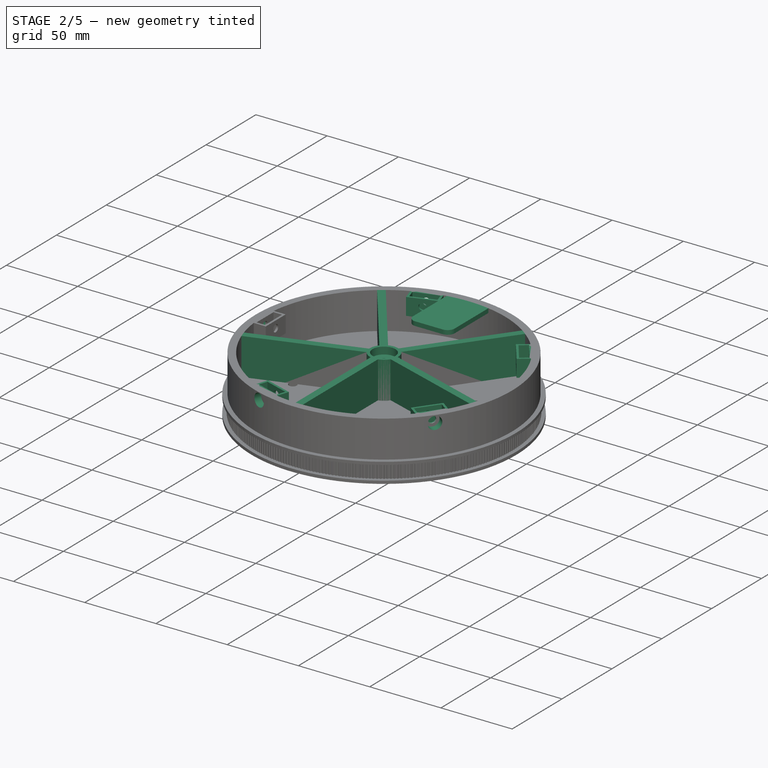
[diagram: stage 2 of 5 — iso view after this stage's code; geometry added in this stage tinted green]
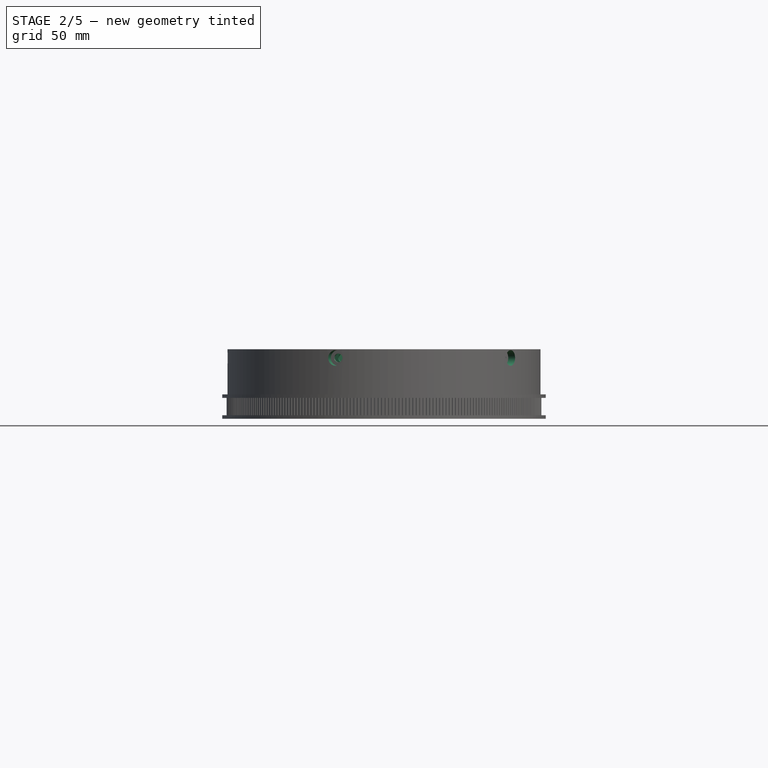
[diagram: stage 2 of 5 — front view after this stage's code; geometry added in this stage tinted green]
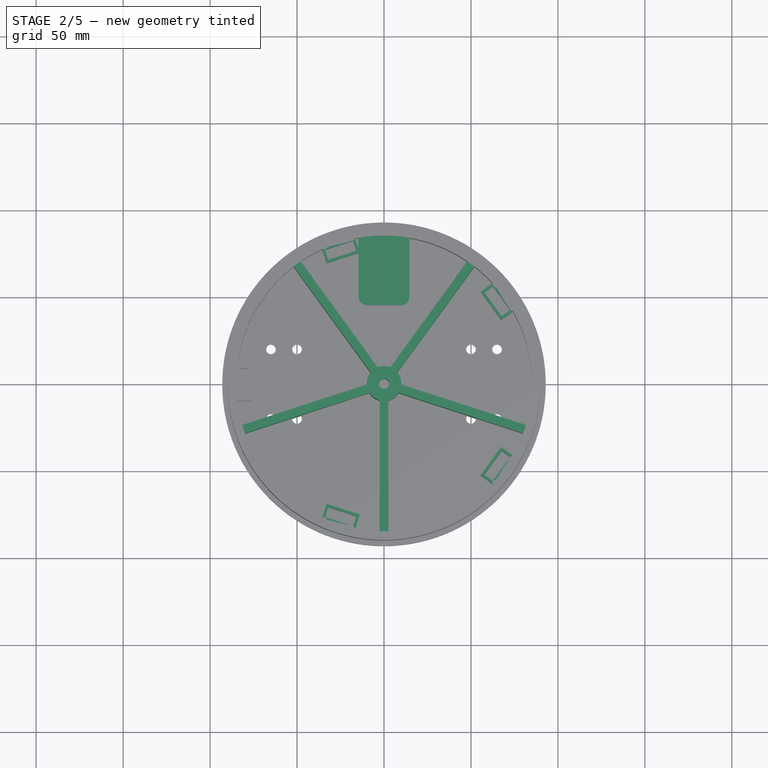
[diagram: stage 2 of 5 — top view after this stage's code; geometry added in this stage tinted green]
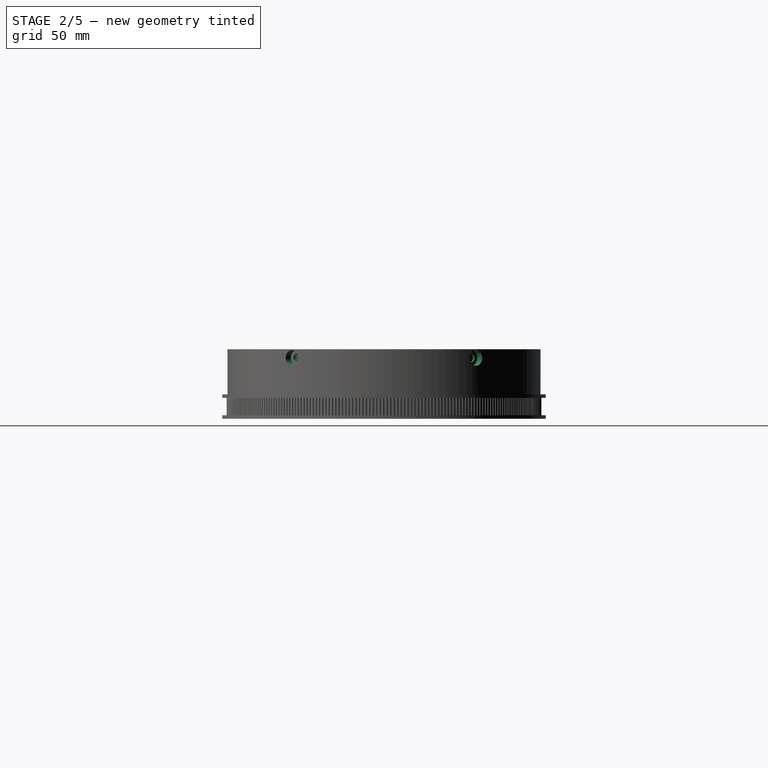
[diagram: stage 2 of 5 — right view after this stage's code; geometry added in this stage tinted green]
FEATURE [PartDesign::Pocket] Pocket042  label="POCKET_X_Axis_Top_VerticalBearing_BoltHead"
  BaseFeature = -> Pocket041
  Direction = (-1,2e-16,-3e-16)
  Length = 5
  Length2 = 5
  Profile = -> Sketch090
  ReferenceAxis = -> Sketch090 [N_Axis]
  Reversed = true
  Type = 0
FEATURE [PartDesign::Pad] Pad032  label="PAD_X_Axis_Top_BearingMount_Pillar"
  BaseFeature = -> Pocket042
  Direction = (0,0,1)
  Length = 40
  Length2 = 10
  Profile = -> Sketch097
  ReferenceAxis = -> Sketch097 [N_Axis]
  Type = 0
  expr: Length = <<S_X_Axis_Master_Sketch>>.Constraints.Height
FEATURE [PartDesign::PolarPattern] PolarPattern  label="PAT_X_Axis_Top_BearingMount_Pillars"
  Angle = 360
  Axis = -> Sketch097 [N_Axis]
  BaseFeature = -> Pad032
  Occurrences = 5
  Originals = -> [Pad032]
FEATURE [PartDesign::PolarPattern] PolarPattern005  label="PAT_X_Axis_Top_VerticalBearing_Bodies"
  Angle = 360
  Axis = -> Z_Axis046
  BaseFeature = -> PolarPattern
  Occurrences = 5
  Originals = -> [Pad031]
FEATURE [PartDesign::PolarPattern] PolarPattern006  label="PAT_X_Axis_Top_VerticalBearing_Holes"
  Angle = 360
  Axis = -> Z_Axis046
  BaseFeature = -> PolarPattern005
  Occurrences = 5
  Originals = -> [Pocket041,Pocket042]
FEATURE [PartDesign::Pad] Pad033  label="PAD_X_Axis_Top_BearingMount_Body"
  BaseFeature = -> PolarPattern006
  Direction = (0,0,1)
  Length = 40
  Length2 = 10
  Profile = -> Sketch095
  ReferenceAxis = -> Sketch095 [N_Axis]
  Type = 0
  expr: Length = <<S_X_Axis_Master_Sketch>>.Constraints.Height
FEATURE [PartDesign::Pocket] Pocket043  label="POCKET_X_Axis_Top_ShaftHole"
  BaseFeature = -> Pad033
  Direction = (0,0,-1)
  Length = 40
  Length2 = 5
  Profile = -> Sketch094
  ReferenceAxis = -> Sketch094 [N_Axis]
  Reversed = true
  Type = 0
  expr: Length = <<S_X_Axis_Master_Sketch>>.Constraints.Height
FEATURE [PartDesign::Pocket] Pocket044  label="POCKET_X_Axis_Top_Bearing_Top"
  BaseFeature = -> Pocket043
  Direction = (0,0,-1)
  Length = 5
  Length2 = 5
  Profile = -> Sketch092
  ReferenceAxis = -> Sketch092 [N_Axis]
  Type = 0
  expr: Length = <<S_X_Axis_Master_Sketch>>.Constraints.BearingWidth
FEATURE [PartDesign::Pocket] Pocket045  label="POCKET_X_Axis_Top_Bearing_Bottom"
  BaseFeature = -> Pocket044
  Direction = (0,0,-1)
  Length = 5
  Length2 = 5
  Profile = -> Sketch093
  ReferenceAxis = -> Sketch093 [N_Axis]
  Reversed = true
  Type = 0
  expr: Length = <<S_X_Axis_Master_Sketch>>.Constraints.BearingWidth
FEATURE [PartDesign::Pad] Pad034  label="PAD_X_Axis_Top_LimitSwitch_Body"
  BaseFeature = -> Pocket045
  Direction = (0,0,1)
  Length = 3
  Length2 = 10
  Profile = -> Sketch098
  ReferenceAxis = -> Sketch098 [N_Axis]
  Reversed = true
  Type = 0
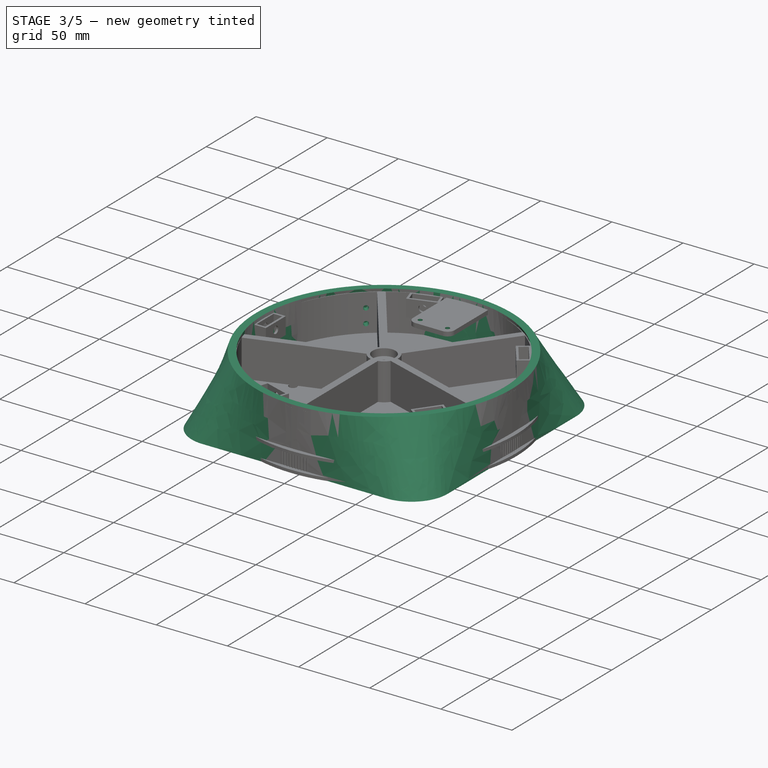
[diagram: stage 3 of 5 — iso view after this stage's code; geometry added in this stage tinted green]
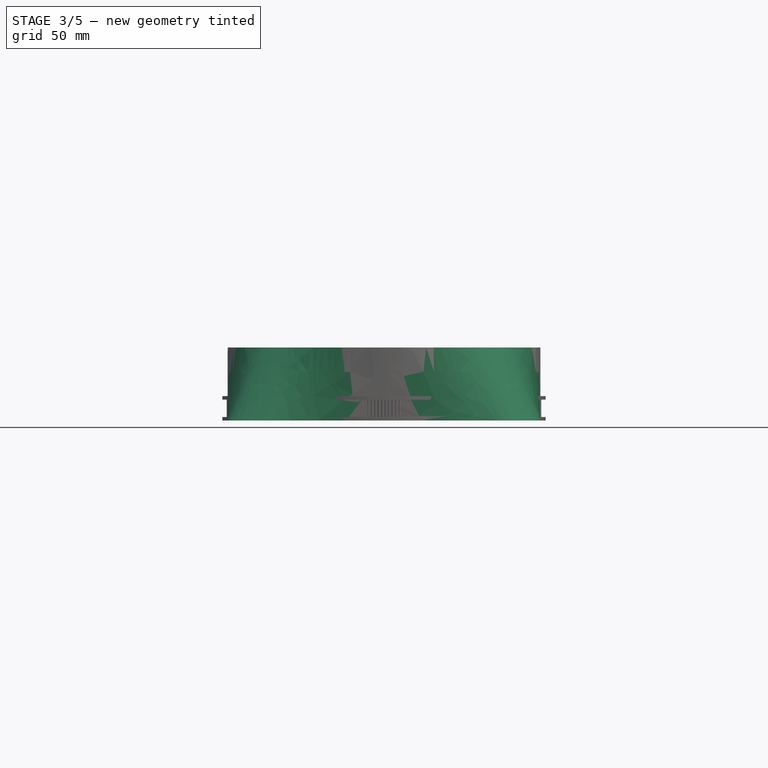
[diagram: stage 3 of 5 — front view after this stage's code; geometry added in this stage tinted green]
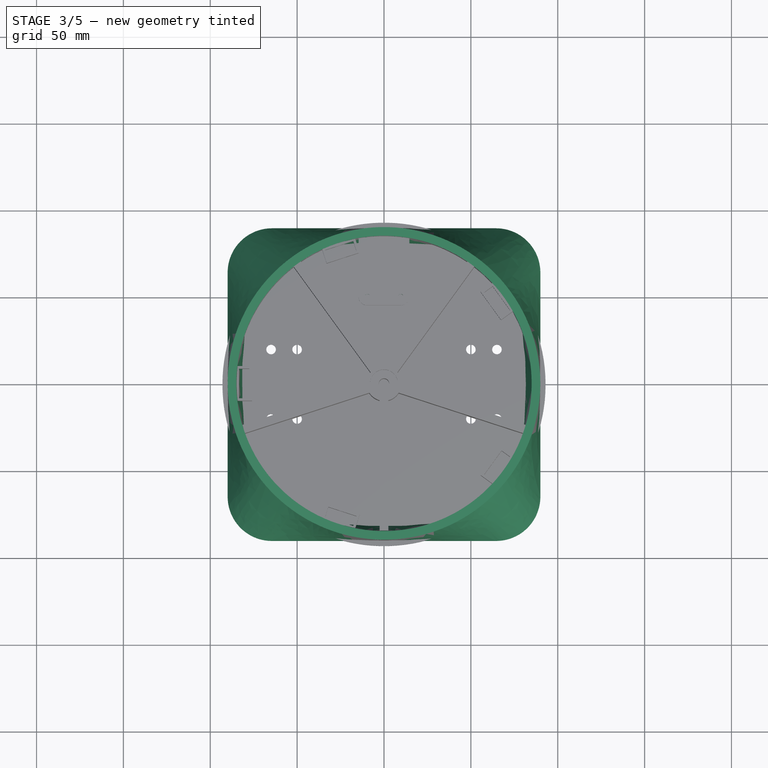
[diagram: stage 3 of 5 — top view after this stage's code; geometry added in this stage tinted green]
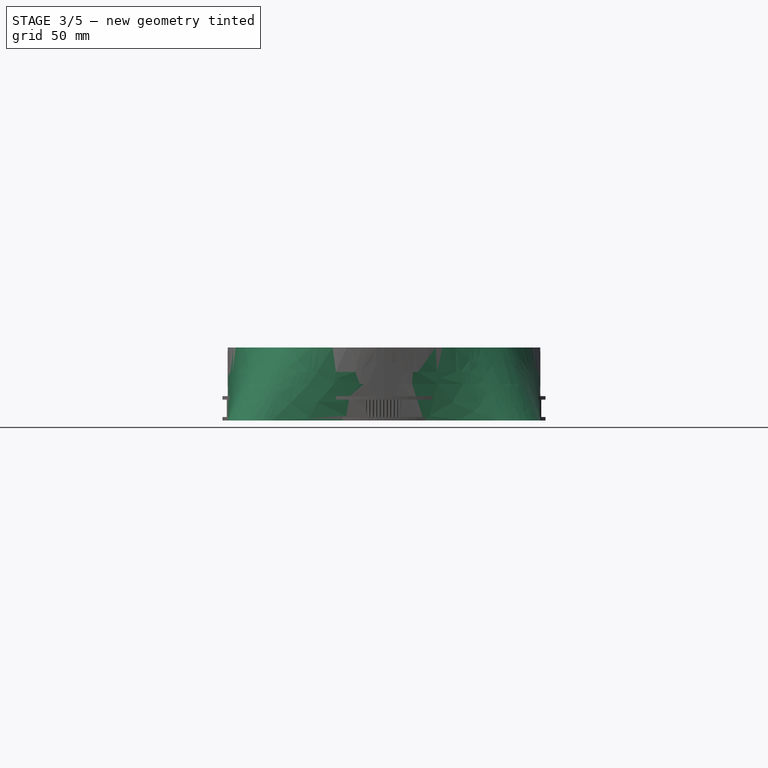
[diagram: stage 3 of 5 — right view after this stage's code; geometry added in this stage tinted green]
FEATURE [PartDesign::Pocket] Pocket046  label="POCKET_X_Axis_Top_LimitSwitch_Holes"
  BaseFeature = -> Pad034
  Direction = (0,0,-1)
  Length = 5
  Length2 = 5
  Profile = -> Sketch091
  ReferenceAxis = -> Sketch091 [N_Axis]
  Type = 0
FEATURE [Part::Part2DObjectPython] Clone2D001  label="S_X_Axis_Base_Base_Overlap (2D)"  # Draft 2D object (typed FeaturePython)
  Fuse = false
  Objects = -> [Sketch099]
  Scale = (1,1,1)
  expr: .Placement.Base.z = 0
FEATURE [PartDesign::Pocket] Pocket047  label="POCKET_X_Axis_Top_Overlap"
  BaseFeature = -> Pocket046
  Direction = (0,0,-1)
  Length = 10
  Length2 = 5
  Profile = -> Clone2D001
  Reversed = true
  Type = 0
  expr: Length = <<S_X_Axis_Master_Sketch>>.Constraints.Overlap
FEATURE [PartDesign::CoordinateSystem] LCS_X_Axis_Top_Origin
  AttacherType = Attacher::AttachEngine3D
FEATURE [PartDesign::CoordinateSystem] LCS_X_Axis_Top_Bearing_0
  AttacherType = Attacher::AttachEngine3D
  AttachmentOffset = pos=(0,0,5) rot=(0,0,1;0rad)
  Placement = pos=(0,0,5) rot=(0,0,1;1.5708rad)
  expr: .AttachmentOffset.Base.z = <<S_X_Axis_Master_Sketch>>.Constraints.BearingWidth
  expr: .Placement.Base.z = <<S_X_Axis_Master_Sketch>>.Constraints.BearingWidth
FEATURE [PartDesign::CoordinateSystem] LCS_X_Axis_Top_Bearing_1
  AttacherType = Attacher::AttachEngine3D
  Placement = pos=(0,0,35) rot=(0,0,1;1.5708rad)
  expr: .Placement.Base.z = <<S_X_Axis_Master_Sketch>>.Constraints.Height - <<S_X_Axis_Master_Sketch>>.Constraints.BearingWidth
FEATURE [PartDesign::CoordinateSystem] LCS_X_Axis_Top_LimitSwitch_0
  AttacherType = Attacher::AttachEngine3D
  Placement = pos=(9.625,50,40) rot=(0,0,1;1.5708rad)
  expr: .Placement.Base.x = <<S_X_Axis_Top_LimitSwitch_Holes>>.Constraints.LimitSwitchSeparation / 2
  expr: .Placement.Base.y = <<S_X_Axis_Top_LimitSwitch_Holes>>.Constraints.LimitSwitchOffset
  expr: .Placement.Base.z = <<S_X_Axis_Master_Sketch>>.Constraints.Height
FEATURE [PartDesign::CoordinateSystem] LCS_X_Axis_Top_LimitSwitch_1
  AttacherType = Attacher::AttachEngine3D
  Placement = pos=(-9.625,50,40) rot=(0,0,1;1.5708rad)
  expr: .Placement.Base.x = -<<S_X_Axis_Top_LimitSwitch_Holes>>.Constraints.LimitSwitchSeparation / 2
  expr: .Placement.Base.y = <<S_X_Axis_Top_LimitSwitch_Holes>>.Constraints.LimitSwitchOffset
  expr: .Placement.Base.z = <<S_X_Axis_Master_Sketch>>.Constraints.Height
FEATURE [Sketcher::SketchObject] Sketch  label="S_X_Axis_Top_BearingCapHole"
  AttachmentOffset = pos=(0,0,2.5) rot=(0,0,1;0rad)
  FullyConstrained = true
  MapMode = 5
  Placement = pos=(2.5,-6e-16,6e-16) rot=(0.57735,0.57735,0.57735;2.0944rad)
  Support = -> [YZ_Plane046]
  expr: .AttachmentOffset.Base.z = <<S_X_Axis_Top_BearingMount_Pillar>>.Constraints.PillarWidth / 2
  expr: Constraints[8] = <<S_X_Axis_Master_Sketch>>.Constraints.BearingOD / 2 + 10 mm
  sketch-geometry (5):
    g0: LineSegment StartX=-19.5 StartY=5 StartZ=0 EndX=-16.5 EndY=5 EndZ=0
    g1: LineSegment StartX=-16.5 StartY=5 StartZ=0 EndX=-16.5 EndY=3 EndZ=0
    g2: LineSegment StartX=-16.5 StartY=3 StartZ=0 EndX=-19.5 EndY=3 EndZ=0
    g3: LineSegment StartX=-19.5 StartY=3 StartZ=0 EndX=-19.5 EndY=5 EndZ=0
    g4: GeomPoint X=-18 Y=4 Z=0
  constraints (13):
    c: Coincident(g0,g1)
    c: Coincident(g1,g2)
    c: Coincident(g2,g3)
    c: Coincident(g3,g0)
    c: Horizontal(g0)
    c: Horizontal(g2)
    c: Vertical(g1)
    c: Vertical(g3)
    c: DistanceX(g4,g-1) = 18
    c: Symmetric(g1,g0,g4)
    c: DistanceY(g-1,g1) = 3
    c: DistanceY(g1,g1) = 2
    c: DistanceX(g0,g0) = 3
FEATURE [PartDesign::Pocket] Pocket  label="POCKET_X_Axis_Top_BaringCapHole"
  BaseFeature = -> Pocket047
  Direction = (-1,2e-16,-3e-16)
  Length = 5
  Length2 = 5
  Profile = -> Sketch
  ReferenceAxis = -> Sketch [N_Axis]
  Type = 0
  expr: Length = <<S_X_Axis_Top_BearingMount_Pillar>>.Constraints.PillarWidth
FEATURE [PartDesign::PolarPattern] PolarPattern007  label="PAT_X_Axis_Top_BearingCapHoles"
  Angle = 360
  Axis = -> Z_Axis046
  BaseFeature = -> Pocket
  Occurrences = 5
  Originals = -> [Pocket]
FEATURE [Part::Part2DObjectPython] Clone2D002  label="S_X_Axis_Base_Base (2D)"  # Draft 2D object (typed FeaturePython)
  Fuse = false
  Objects = -> [Sketch084]
  Scale = (1,1,1)
FEATURE [Part::Part2DObjectPython] Clone2D003  label="S_X_Axis_Base_Base_Top (2D)001"  # Draft 2D object (typed FeaturePython)
  Fuse = false
  Objects = -> [Sketch085]
  Placement = pos=(0,0,42) rot=(0,0,1;0rad)
  Scale = (1,1,1)
  expr: .Placement.Base.z = <<S_X_Axis_Master_Sketch>>.Constraints.BaseHeight
FEATURE [Part::Part2DObjectPython] Clone2D004  label="S_X_Axis_Base_Base_Overlap (2D)001"  # Draft 2D object (typed FeaturePython)
  Fuse = false
  Objects = -> [Sketch099]
  Placement = pos=(0,0,42) rot=(0,0,1;0rad)
  Scale = (1,1,1)
  expr: .Placement.Base.z = <<S_X_Axis_Master_Sketch>>.Constraints.BaseHeight
FEATURE [PartDesign::AdditiveLoft] AdditiveLoft  label="LOFT_X_Axis_Base"
  Closed = false
  Profile = -> Clone2D002
  Ruled = true
  Sections = -> [Clone2D003]
FEATURE [Sketcher::SketchObject] Sketch102  label="S_X_Axis_Base_Overlap_Hole"
  AttachmentOffset = pos=(0,0,-90) rot=(0,0,1;0rad)
  FullyConstrained = true
  MapMode = 5
  Placement = pos=(0,90,2e-14) rot=(1,0,0;1.5708rad)
  Support = -> [XZ_Plane048]
  expr: .AttachmentOffset.Base.z = -<<S_X_Axis_Master_Sketch>>.Constraints.OuterRadius
  sketch-geometry (2):
    g0: GeomPoint X=0 Y=0 Z=0
    g1: Circle CenterX=0 CenterY=0 CenterZ=0 NormalX=0 NormalY=0 NormalZ=1 AngleXU=0 Radius=1.5
  constraints (3):
    c: Coincident(g1,g0)
    c: Diameter(g1) = 3
    c: Coincident(g1,g-1)
FEATURE [App::DocumentObjectGroup] Group019  label="X_Axis_MasterSketches"
  Group = -> [Sketch084,Sketch085,Sketch086,Sketch099,Sketch102]
FEATURE [Part::Part2DObjectPython] Clone2D006  label="S_X_Axis_Base_Overlap_Holes (2D)001"  # Draft 2D object (typed FeaturePython)
  Fuse = false
  Objects = -> [Sketch102]
  Placement = pos=(0,90,5) rot=(1,0,0;1.5708rad)
  Scale = (1,1,1)
FEATURE [PartDesign::Hole] Hole  label="HOLE_X_Axis_Top_Overlap_Hole"
  BaseFeature = -> PolarPattern007
  CustomThreadClearance = 0
  Depth = 25
  DepthType = 0
  Diameter = 3.4
  DrillForDepth = false
  DrillPoint = 1
  DrillPointAngle = 118
  HoleCutCountersinkAngle = 90
  HoleCutCustomValues = false
  HoleCutDepth = 0
  HoleCutDiameter = 6.1
  HoleCutType = 0
  ModelThread = false
  Profile = -> Clone2D006
  Reversed = true
  Tapered = false
  TaperedAngle = 90
  ThreadClass = 0
  ThreadDepth = 25
  ThreadDepthType = 0
  ThreadDirection = 0
  ThreadFit = 0
  ThreadSize = 9
  ThreadType = 1
  Threaded = false
  UseCustomThreadClearance = false
FEATURE [PartDesign::PolarPattern] PolarPattern009  label="PAT_X_Axis_Top_Overlap_Holes"
  Angle = 360
  Axis = -> Z_Axis046
  BaseFeature = -> Hole
  Occurrences = 5
  Originals = -> [Hole]
FEATURE [PartDesign::Body] Body022  label="B_X_Axis_Shaft"
  Group = -> [Sketch115,Pad044]
  Origin = -> Origin058
  Tip = -> Pad044
FEATURE [PartDesign::CoordinateSystem] LCS_X_Axis_Shaft_Bottom
  AttacherType = Attacher::AttachEngine3D
FEATURE [App::Part] Part024  label="P_X_Axis_Shaft"
  DrawingName = jrobot-x-axis-parts.FCStd
  Group = -> [Body022,LCS_X_Axis_Shaft_Bottom]
  Origin = -> Origin057
  PartDescription = B_X_Axis_Shaft
  PartID = jrobot-x-axis-parts
FEATURE [PartDesign::Pocket] Pocket051  label="POCKET_X_Axis_LimitSwitch_CableHole"
  BaseFeature = -> PolarPattern009
  Direction = (0,1,2e-16)
  Length = 7
  Length2 = 5
  Profile = -> Sketch112
  ReferenceAxis = -> Sketch112 [N_Axis]
  Reversed = true
  Type = 0
  expr: Length = <<S_X_Axis_Master_Sketch>>.Constraints.WallThickness + 2 mm
FEATURE [PartDesign::CoordinateSystem] LCS_X_Axis_Top_VerticalBearing_2
  AttacherType = Attacher::AttachEngine3D
  MapMode = 11
  Placement = pos=(-23.9488,-73.7069,35) rot=(0.62896,0.456966,-0.62896;2.28433rad)
  Support = -> [Pocket051]
FEATURE [PartDesign::CoordinateSystem] LCS_X_Axis_Top_VerticalBearing_3  label="LCS_X_Axis_Top_VerticalBearing_4"
  AttacherType = Attacher::AttachEngine3D
  MapMode = 11
  Placement = pos=(62.6988,45.5534,35) rot=(-0.295242,0.908661,0.295242;1.66643rad)
  Support = -> [Pocket051]
FEATURE [PartDesign::CoordinateSystem] LCS_X_Axis_Top_VerticalBearing_004  label="LCS_X_Axis_Top_VerticalBearing_1"
  AttacherType = Attacher::AttachEngine3D
  MapMode = 11
  Placement = pos=(-77.5,2.49e-14,35) rot=(0.707107,0,-0.707107;3.14159rad)
  Support = -> [Pocket051]
FEATURE [Sketcher::SketchObject] Sketch118  label="S_X_Axis_MotorMount_Bottom"
  AttachmentOffset = pos=(0,-126,-32) rot=(0,0,1;0rad)
  FullyConstrained = false
  MapMode = 5
  Placement = pos=(0,-126,-32) rot=(0,0,1;0rad)
  Support = -> [XY_Plane049]
  expr: .AttachmentOffset.Base.y = -(<<S_X_Axis_Master_Sketch>>.Constraints.OuterRadius + 72 mm / 2)
  expr: .AttachmentOffset.Base.z = -<<S_X_Axis_Master_Sketch>>.Constraints.Height + 8 mm
  expr: Constraints[12] = <<S_X_Axis_Master_Sketch>>.Constraints.OuterRadius
  sketch-geometry (12):
    g0: LineSegment StartX=-58 StartY=35 StartZ=0 EndX=-58 EndY=-35 EndZ=0
    g1: LineSegment StartX=-58 StartY=-35 StartZ=0 EndX=58 EndY=-35 EndZ=0
    g2: LineSegment StartX=58 StartY=-35 StartZ=0 EndX=58 EndY=35 EndZ=0
    g3: LineSegment StartX=58 StartY=35 StartZ=0 EndX=-58 EndY=35 EndZ=0
    g4: GeomPoint X=0 Y=0 Z=0
    g5: LineSegment StartX=-58 StartY=35 StartZ=0 EndX=-47.7848 EndY=45.2152 EndZ=0
    g6: LineSegment StartX=58 StartY=35 StartZ=0 EndX=47.7848 EndY=45.2152 EndZ=0
    g7: ArcOfCircle CenterX=0 CenterY=125 CenterZ=0 NormalX=0 NormalY=0 NormalZ=1 AngleXU=0 Radius=93 StartAngle=4.17276 EndAngle=4.38393
    g8: ArcOfCircle CenterX=-3.18e-14 CenterY=125 CenterZ=0 NormalX=0 NormalY=0 NormalZ=1 AngleXU=0 Radius=93 StartAngle=5.04084 EndAngle=5.25201
    g9: LineSegment StartX=-30 StartY=36.9716 StartZ=0 EndX=-30 EndY=54.8532 EndZ=0
    g10: LineSegment StartX=-30 StartY=54.8532 StartZ=0 EndX=30 EndY=54.8532 EndZ=0
    g11: LineSegment StartX=30 StartY=54.8532 StartZ=0 EndX=30 EndY=36.9716 EndZ=0
  constraints (32):
    c: Coincident(g0,g1)
    c: Coincident(g1,g2)
    c: Coincident(g2,g3)
    c: Coincident(g3,g0)
    c: Horizontal(g1)
    c: Horizontal(g3)
    c: Vertical(g0)
    c: Vertical(g2)
    c: Symmetric(g1,g0,g4)
    c: Coincident(g4,g-1)
    c: DistanceX(g3,g3) = 116  'Width'
    c: DistanceY(g2,g2) = 70  'Depth'
    c: DistanceY(g2,g7) = 90
    c: PointOnObject(g7,g-2)
    c: Coincident(g5,g0)
    c: Coincident(g5,g7)
    c: Coincident(g6,g2)
    c: Coincident(g8,g6)
    c: Angle(g3,g5) = 0.785398
    c: Angle(g6,g3) = 0.785398
    c: Radius(g7) = 93
    c: Coincident(g9,g7)
    c: Vertical(g9)
    c: Coincident(g10,g9)
    c: Coincident(g11,g10)
    c: Vertical(g11)
    c: Coincident(g8,g11)
    c: Symmetric(g9,g10,g-2)
    c: DistanceX(g9,g10) = 60
    c: Equal(g8,g7)
    c: Horizontal(g8,g7)
    c: Equal(g6,g5)
FEATURE [PartDesign::Plane] DatumPlane  label="PLANE_X_Axis_Top_MotorMount_Hole"
  AttachmentOffset = pos=(0,0,0) rot=(0,1,0;-0.733038rad)
  Length = 82.4977
  MapMode = 2
  Placement = pos=(0,0,0) rot=(-0.87885,0.337359,0.337359;4.58361rad)
  ResizeMode = 0
  Support = -> [XZ_Plane046]
  Width = 61.8839
  expr: .AttachmentOffset.Rotation.Angle = -<<S_X_Axis_Base_Base_Top>>.Constraints.MotorMountHoleAngle
FEATURE [Part::Part2DObjectPython] Clone2D008  label="S_X_Axis_Top_MotorMount_Hole"  # Draft 2D object (typed FeaturePython)
  AttachmentOffset = pos=(0,30,-90) rot=(0,0,1;0rad)
  Fuse = false
  MapMode = 5
  Objects = -> [Sketch102]
  Placement = pos=(60.2218,66.883,30) rot=(0.87885,-0.337359,-0.337359;1.69958rad)
  Scale = (1,1,1)
  Support = -> [DatumPlane]
  expr: .AttachmentOffset.Base.z = -<<S_X_Axis_Master_Sketch>>.Constraints.OuterRadius
FEATURE [PartDesign::Hole] Hole003  label="HOLE_X_Axis_Top_MotorMount_Hole"
  BaseFeature = -> Pocket051
  CustomThreadClearance = 0
  Depth = 25
  DepthType = 0
  Diameter = 3.4
  DrillForDepth = false
  DrillPoint = 1
  DrillPointAngle = 118
  HoleCutCountersinkAngle = 90
  HoleCutCustomValues = false
  HoleCutDepth = 0
  HoleCutDiameter = 6.1
  HoleCutType = 0
  ModelThread = false
  Profile = -> Clone2D008
  Reversed = true
  Tapered = false
  TaperedAngle = 90
  ThreadClass = 0
  ThreadDepth = 25
  ThreadDepthType = 0
  ThreadDirection = 0
  ThreadFit = 0
  ThreadSize = 9
  ThreadType = 1
  Threaded = false
  UseCustomThreadClearance = false
FEATURE [PartDesign::LinearPattern] LinearPattern
  Direction = -> Z_Axis046
  Length = 10
  Occurrences = 2
  Reversed = true
FEATURE [PartDesign::PolarPattern] PolarPattern012
  Angle = 84
  Axis = -> Z_Axis046
  Occurrences = 2
  expr: Angle = <<S_X_Axis_Base_Base_Top>>.Constraints.MotorMountHoleAngle * 2
FEATURE [PartDesign::MultiTransform] MultiTransform001  label="PAT_X_Axis_Top_MotorMount_Hole"
  BaseFeature = -> Hole003
  Originals = -> [Hole003]
  Transformations = -> [LinearPattern,PolarPattern012]
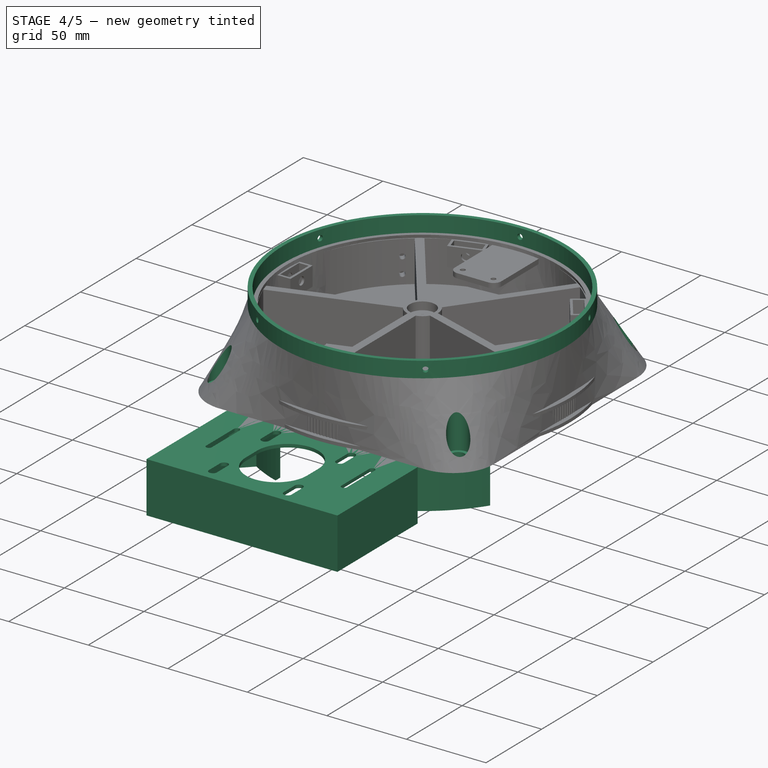
[diagram: stage 4 of 5 — iso view after this stage's code; geometry added in this stage tinted green]
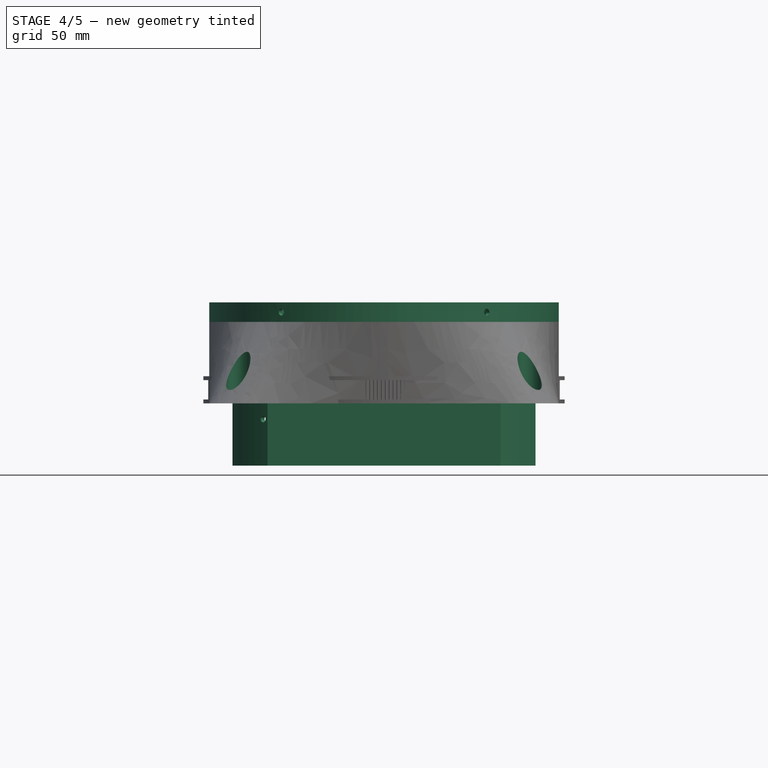
[diagram: stage 4 of 5 — front view after this stage's code; geometry added in this stage tinted green]
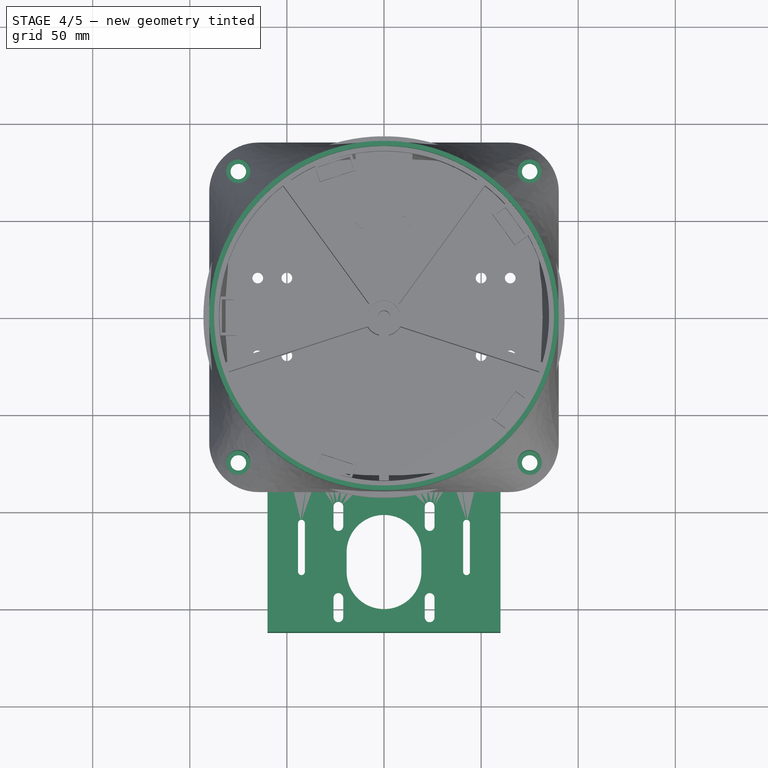
[diagram: stage 4 of 5 — top view after this stage's code; geometry added in this stage tinted green]
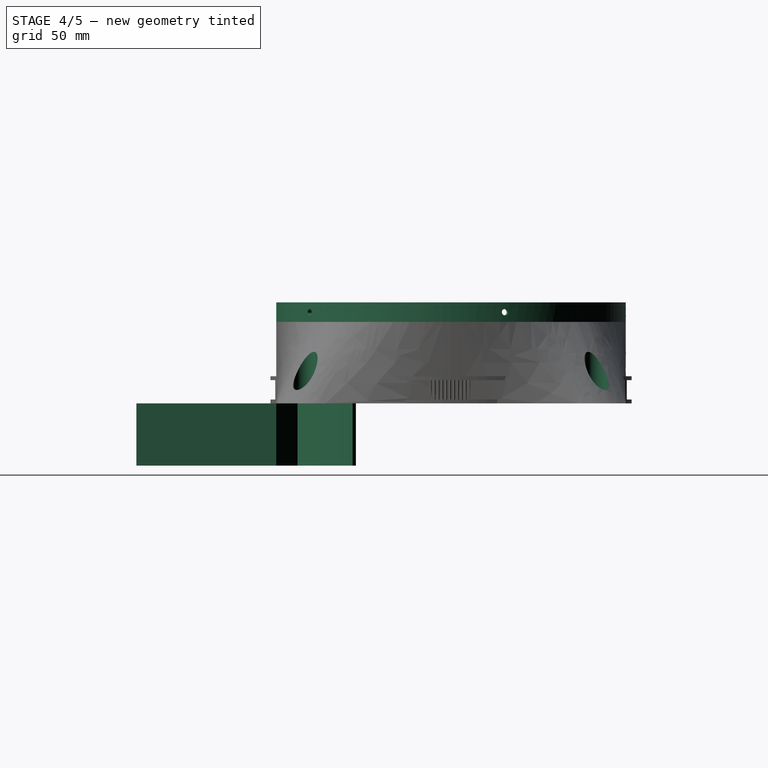
[diagram: stage 4 of 5 — right view after this stage's code; geometry added in this stage tinted green]
FEATURE [Sketcher::SketchObject] Sketch100  label="S_X_Axis_Base_BoltHole"
  AttachmentOffset = pos=(0,0,30) rot=(0,0,1;0rad)
  FullyConstrained = true
  MapMode = 5
  Placement = pos=(0,0,30) rot=(0,0,1;0rad)
  Support = -> [XY_Plane048]
  expr: Constraints[1] = <<S_X_Axis_Master_Sketch>>.Constraints.OuterRadius - 15 mm
  expr: Constraints[2] = <<S_X_Axis_Master_Sketch>>.Constraints.OuterRadius - 15 mm
  sketch-geometry (1):
    g0: Circle CenterX=-75 CenterY=-75 CenterZ=0 NormalX=0 NormalY=0 NormalZ=1 AngleXU=0 Radius=4
  constraints (3):
    c: Diameter(g0) = 8
    c: DistanceY(g0,g-1) = 75
    c: DistanceX(g0,g-1) = 75
FEATURE [PartDesign::Pocket] Pocket048  label="POCKET_X_Axis_Base_BoltHole"
  BaseFeature = -> AdditiveLoft
  Direction = (0,0,-1)
  Length = 30
  Length2 = 5
  Profile = -> Sketch100
  ReferenceAxis = -> Sketch100 [N_Axis]
  Type = 0
FEATURE [Sketcher::SketchObject] Sketch101  label="S_X_Axis_Base_BoltHead"
  AttachmentOffset = pos=(0,0,30) rot=(0,0,1;0rad)
  FullyConstrained = true
  MapMode = 5
  Placement = pos=(0,0,30) rot=(0,0,1;0rad)
  Support = -> [XY_Plane048]
  expr: Constraints[1] = <<S_X_Axis_Master_Sketch>>.Constraints.OuterRadius - 15 mm
  expr: Constraints[2] = <<S_X_Axis_Master_Sketch>>.Constraints.OuterRadius - 15 mm
  sketch-geometry (1):
    g0: Circle CenterX=-75 CenterY=-75 CenterZ=0 NormalX=0 NormalY=0 NormalZ=1 AngleXU=0 Radius=6.25
  constraints (3):
    c: Diameter(g0) = 12.5
    c: DistanceY(g0,g-1) = 75
    c: DistanceX(g0,g-1) = 75
FEATURE [PartDesign::Pocket] Pocket049  label="POCKET_S_X_Axis_Base_BoltHead"
  BaseFeature = -> Pocket048
  Direction = (0,0,-1)
  Length = 25
  Length2 = 5
  Profile = -> Sketch101
  ReferenceAxis = -> Sketch101 [N_Axis]
  Type = 0
FEATURE [PartDesign::Pad] Pad035  label="PAD_X_Axis_Base_Overlap"
  BaseFeature = -> Pocket049
  Direction = (0,0,1)
  Length = 10
  Length2 = 10
  Profile = -> Clone2D004
  ReferenceAxis = -> Clone2D004 [N_Axis]
  Type = 0
  expr: Length = <<S_X_Axis_Master_Sketch>>.Constraints.Overlap
FEATURE [PartDesign::Mirrored] Mirrored  label="PAT_X_Axis_Base_BoltHoles_M1"
  MirrorPlane = -> XZ_Plane048
FEATURE [PartDesign::Mirrored] Mirrored001  label="PAT_X_Axis_Base_BoltHoles_M2"
  MirrorPlane = -> YZ_Plane048
FEATURE [PartDesign::MultiTransform] MultiTransform  label="PAT_X_Axis_Base_BoltHoles"
  BaseFeature = -> Pad035
  Originals = -> [Pocket048,Pocket049]
  Transformations = -> [Mirrored,Mirrored001]
FEATURE [Part::Part2DObjectPython] Clone2D007  label="S_X_Axis_Base_Overlap_Hole (2D)"  # Draft 2D object (typed FeaturePython)
  Fuse = false
  Objects = -> [Sketch102]
  Placement = pos=(0,90,47) rot=(1,0,0;1.5708rad)
  Scale = (1,1,1)
  expr: .Placement.Base.y = <<S_X_Axis_Master_Sketch>>.Constraints.OuterRadius
  expr: .Placement.Base.z = <<S_X_Axis_Master_Sketch>>.Constraints.BaseHeight + <<S_X_Axis_Master_Sketch>>.Constraints.Overlap / 2
FEATURE [PartDesign::Hole] Hole001  label="HOLE_X_Axis_Base_Overlap_Hole"
  BaseFeature = -> MultiTransform
  CustomThreadClearance = 0
  Depth = 25
  DepthType = 0
  Diameter = 3.4
  DrillForDepth = false
  DrillPoint = 1
  DrillPointAngle = 118
  HoleCutCountersinkAngle = 90
  HoleCutCustomValues = false
  HoleCutDepth = 0
  HoleCutDiameter = 6.1
  HoleCutType = 0
  ModelThread = false
  Profile = -> Clone2D007
  Reversed = true
  Tapered = false
  TaperedAngle = 90
  ThreadClass = 0
  ThreadDepth = 25
  ThreadDepthType = 0
  ThreadDirection = 0
  ThreadFit = 0
  ThreadSize = 9
  ThreadType = 1
  Threaded = false
  UseCustomThreadClearance = false
FEATURE [PartDesign::PolarPattern] PolarPattern010  label="PAT_X_Axis_Base_Overlap_Holes"
  Angle = 360
  Axis = -> Z_Axis048
  BaseFeature = -> Hole001
  Occurrences = 5
  Originals = -> [Hole001]
FEATURE [PartDesign::Body] Body  label="B_X_Axis_Base"
  Group = -> [Clone2D002,Clone2D003,Clone2D004,AdditiveLoft,Sketch100,Pocket048,Sketch101,Pocket049,Pad035,MultiTransform,Mirrored,Mirrored001,Clone2D007,Hole001,PolarPattern010]
  Origin = -> Origin048
  Tip = -> PolarPattern010
FEATURE [PartDesign::CoordinateSystem] LCS_X_Axis_Base_Origin
  AttacherType = Attacher::AttachEngine3D
FEATURE [PartDesign::CoordinateSystem] LCS_X_Axis_Base_Top
  AttacherType = Attacher::AttachEngine3D
  Placement = pos=(0,0,42) rot=(0,0,1;0rad)
  expr: .Placement.Base.z = <<S_X_Axis_Master_Sketch>>.Constraints.BaseHeight
FEATURE [Sketcher::SketchObject] Sketch103  label="S_X_Axis_MotorMount_Body"
  FullyConstrained = true
  MapMode = 5
  Support = -> [XY_Plane049]
  expr: Constraints[32] = 90 ° - <<S_X_Axis_Base_Base_Top>>.Constraints.MotorMountHoleAngle - 15 °
  expr: Constraints[33] = <<S_X_Axis_Master_Sketch>>.Constraints.OuterRadius
  expr: Constraints[9] = <<S_X_Axis_Master_Sketch>>.Constraints.OuterRadius
  sketch-geometry (13):
    g0: LineSegment StartX=-60 StartY=-90 StartZ=0 EndX=-60 EndY=-162 EndZ=0
    g1: LineSegment StartX=-60 StartY=-162 StartZ=0 EndX=60 EndY=-162 EndZ=0
    g2: LineSegment StartX=60 StartY=-162 StartZ=0 EndX=60 EndY=-90 EndZ=0
    g3: LineSegment StartX=60 StartY=-90 StartZ=0 EndX=-60 EndY=-90 EndZ=0
    g4: GeomPoint X=0 Y=0 Z=0
    g5: ArcOfCircle CenterX=0 CenterY=0 CenterZ=0 NormalX=0 NormalY=0 NormalZ=1 AngleXU=0 Radius=90 StartAngle=3.71755 EndAngle=5.70723
    g6: ArcOfCircle CenterX=0 CenterY=0 CenterZ=0 NormalX=0 NormalY=0 NormalZ=1 AngleXU=0 Radius=93 StartAngle=3.71755 EndAngle=4.15712
    g7: ArcOfCircle CenterX=0 CenterY=0 CenterZ=0 NormalX=0 NormalY=0 NormalZ=1 AngleXU=0 Radius=93 StartAngle=5.26766 EndAngle=5.70723
    g8: LineSegment StartX=-77.9964 StartY=-50.6514 StartZ=0 EndX=-75.4804 EndY=-49.0175 EndZ=0
    g9: LineSegment StartX=-49.0273 StartY=-79.0273 StartZ=0 EndX=-60 EndY=-90 EndZ=0
    g10: LineSegment StartX=60 StartY=-90 StartZ=0 EndX=49.0273 EndY=-79.0273 EndZ=0
    g11: LineSegment StartX=77.9964 StartY=-50.6514 StartZ=0 EndX=75.4804 EndY=-49.0175 EndZ=0
    g12: LineSegment StartX=75.4804 StartY=-49.0175 StartZ=0 EndX=0 EndY=0 EndZ=0
  constraints (34):
    c: Coincident(g0,g1)
    c: Coincident(g1,g2)
    c: Coincident(g2,g3)
    c: Coincident(g3,g0)
    c: Horizontal(g1)
    c: Horizontal(g3)
    c: Vertical(g0)
    c: Vertical(g2)
    c: Coincident(g4,g-1)
    c: Radius(g5) = 90
    c: Coincident(g6,g5)
    c: Coincident(g7,g5)
    c: Coincident(g8,g6)
    c: Coincident(g8,g5)
    c: Coincident(g9,g6)
    c: Coincident(g9,g0)
    c: Coincident(g10,g2)
    c: Coincident(g10,g7)
    c: Coincident(g11,g7)
    c: Coincident(g11,g5)
    c: Equal(g11,g8)
    c: Distance(g11) = 3
    c: Angle(g3,g9) = 0.785398
    c: Angle(g10,g3) = 0.785398
    c: Coincident(g4,g5)
    c: Symmetric(g6,g7,g-2)
    c: DistanceX(g1,g1) = 120
    c: DistanceY(g2,g2) = 72
    c: Perpendicular(g5,g8)
    c: Horizontal(g5,g5)
    c: Coincident(g12,g5)
    c: Coincident(g12,g5)
    c: Angle(g12,g-1) = 0.575959
    c: DistanceY(g2,g5) = 90
FEATURE [PartDesign::Pad] Pad036  label="PAD_X_Axis_MotorMount_Body"
  Direction = (0,0,1)
  Length = 32
  Length2 = 10
  Profile = -> Sketch103
  ReferenceAxis = -> Sketch103 [N_Axis]
  Reversed = true
  Type = 0
  expr: Length = <<S_X_Axis_Master_Sketch>>.Constraints.Height - 8 mm
FEATURE [PartDesign::Body] Body017  label="B_X_Axis_Top"
  Group = -> [Sketch089,Sketch090,Sketch091,Sketch092,Sketch093,Sketch094,Sketch095,Sketch096,Pad,Pad031,Pocket041,Pocket042,Sketch097,Pad032,PolarPattern,PolarPattern005,PolarPattern006,Pad033,Pocket043,Pocket044,Pocket045,Sketch098,Pad034,Pocket046,Pocket047,Clone2D,Clone2D001,Sketch,Pocket,PolarPattern007,Clone2D006,Hole,PolarPattern009,Sketch112,Pocket051,DatumPlane,Clone2D008,Hole003,MultiTransform001,+2 more]
  Origin = -> Origin046
  Tip = -> MultiTransform001
FEATURE [PartDesign::CoordinateSystem] LCS_X_Axis_Top_VerticalBearing_003  label="LCS_X_Axis_Top_VerticalBearing_3"
  AttacherType = Attacher::AttachEngine3D
  MapMode = 11
  Placement = pos=(62.6988,-45.5534,35) rot=(0.295242,0.908661,-0.295242;1.66643rad)
  Support = -> [MultiTransform001]
FEATURE [PartDesign::CoordinateSystem] LCS_X_Axis_Top_VerticalBearing_0
  AttacherType = Attacher::AttachEngine3D
  AttachmentOffset = pos=(0,0,0) rot=(0,0,1;1.5708rad)
  MapMode = 11
  Placement = pos=(-23.9488,73.7069,35) rot=(0.111299,-0.702714,-0.702714;2.91991rad)
  Support = -> [MultiTransform001]
  expr: .Placement.Base.x = -<<S_X_Axis_Master_Sketch>>.Constraints.OuterRadius
  expr: .Placement.Base.z = <<S_X_Axis_Master_Sketch>>.Constraints.Height - <<S_X_Axis_Master_Sketch>>.Constraints.BearingOD / 2 + <<S_X_Axis_Master_Sketch>>.Constraints.BearingID / 2 + 0.5 mm
FEATURE [PartDesign::Pocket] Pocket052  label="POCKET_X_Axis_MotorMount_Slots"
  BaseFeature = -> Pad036
  Direction = (0,0,-1)
  Length = 32
  Length2 = 5
  Profile = -> Sketch104
  ReferenceAxis = -> Sketch104 [N_Axis]
  Type = 0
  expr: Length = <<S_X_Axis_Master_Sketch>>.Constraints.Height - 8 mm
FEATURE [PartDesign::Pocket] Pocket053  label="POCKET_X_Axis_MotorMount_Bottom"
  BaseFeature = -> Pocket052
  Direction = (0,0,-1)
  Length = 30
  Length2 = 5
  Profile = -> Sketch118
  ReferenceAxis = -> Sketch118 [N_Axis]
  Reversed = true
  Type = 0
  expr: Length = <<S_X_Axis_Master_Sketch>>.Constraints.Height - 10 mm
FEATURE [PartDesign::Plane] DatumPlane001  label="PLANE_X_Axis_MotorMount_MountHole"
  AttachmentOffset = pos=(0,0,0) rot=(0,-1,0;0.733038rad)
  Length = 82.4977
  MapMode = 5
  Placement = pos=(0,0,0) rot=(0.87885,-0.337359,-0.337359;1.69958rad)
  ResizeMode = 0
  Support = -> [XZ_Plane049]
  Width = 61.8839
  expr: .AttachmentOffset.Rotation.Pitch = -<<S_X_Axis_Base_Base_Top>>.Constraints.MotorMountHoleAngle
FEATURE [Part::Part2DObjectPython] Clone2D009  label="S_X_Axis_MotorMount_Hole"  # Draft 2D object (typed FeaturePython)
  AttachmentOffset = pos=(0,-8,94) rot=(0,0,1;0rad)
  Fuse = false
  MapMode = 5
  Objects = -> [Sketch102]
  Placement = pos=(-62.8983,-69.8556,-8) rot=(0.87885,-0.337359,-0.337359;1.69958rad)
  Scale = (1,1,1)
  Support = -> [DatumPlane001]
  expr: .AttachmentOffset.Base.z = <<S_X_Axis_Master_Sketch>>.Constraints.OuterRadius + 4 mm
FEATURE [PartDesign::Hole] Hole004  label="HOLE_X_Axis_MotorMount_Hole"
  BaseFeature = -> Pocket053
  CustomThreadClearance = 0
  Depth = 25
  DepthType = 0
  Diameter = 3.4
  DrillForDepth = false
  DrillPoint = 1
  DrillPointAngle = 118
  HoleCutCountersinkAngle = 90
  HoleCutCustomValues = false
  HoleCutDepth = 0
  HoleCutDiameter = 6.1
  HoleCutType = 0
  ModelThread = false
  Profile = -> Clone2D009
  Tapered = false
  TaperedAngle = 90
  ThreadClass = 0
  ThreadDepth = 25
  ThreadDepthType = 0
  ThreadDirection = 0
  ThreadFit = 0
  ThreadSize = 9
  ThreadType = 1
  Threaded = false
  UseCustomThreadClearance = false
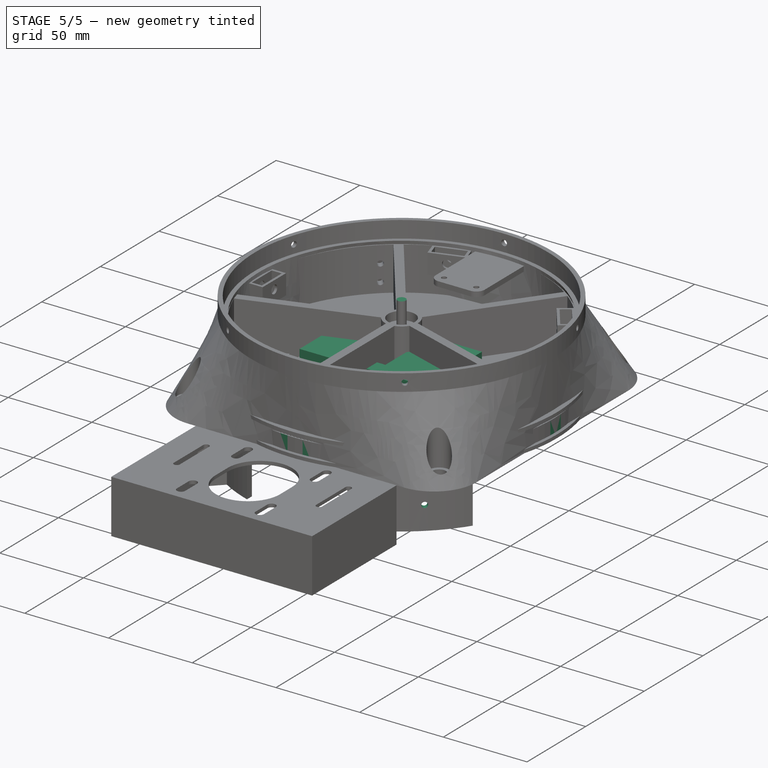
[diagram: stage 5 of 5 — iso view after this stage's code; geometry added in this stage tinted green]
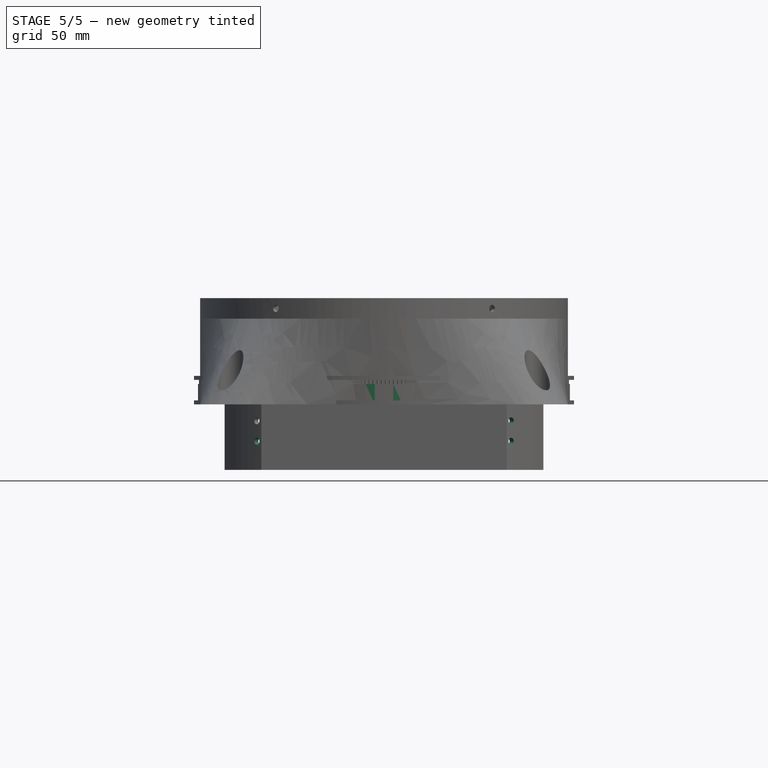
[diagram: stage 5 of 5 — front view after this stage's code; geometry added in this stage tinted green]
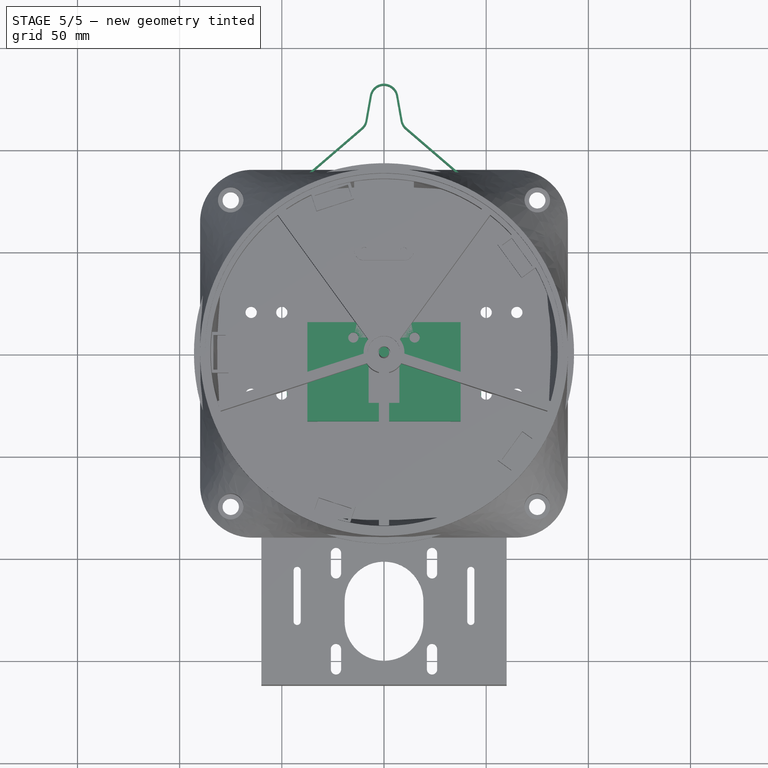
[diagram: stage 5 of 5 — top view after this stage's code; geometry added in this stage tinted green]
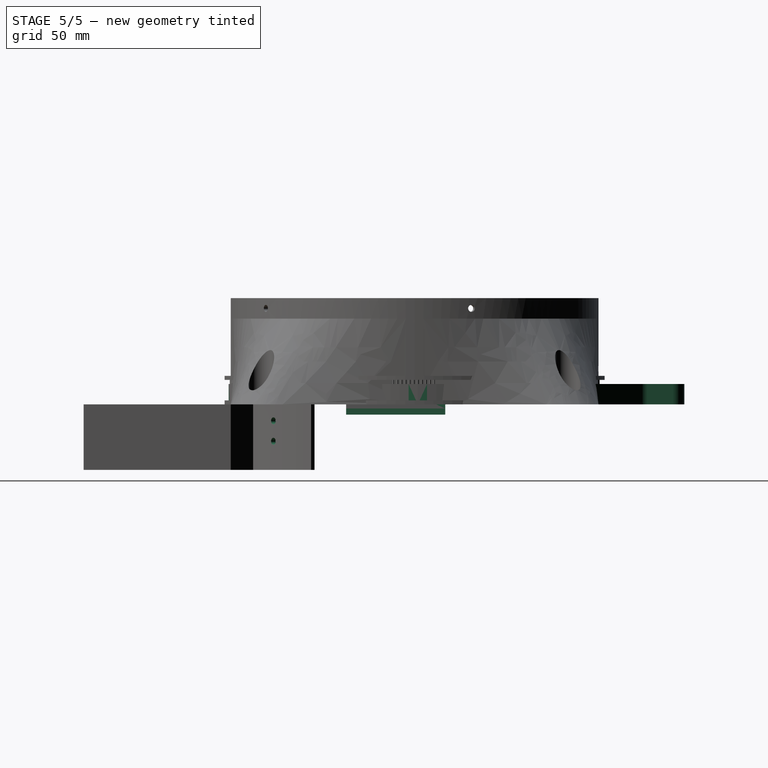
[diagram: stage 5 of 5 — right view after this stage's code; geometry added in this stage tinted green]
FEATURE [Sketcher::SketchObject] Sketch075  label="S_X_Axis_BearingCap_Body"
  FullyConstrained = true
  MapMode = 5
  Support = -> [XY_Plane043]
  expr: Constraints[0] = <<S_X_Axis_Master_Sketch>>.Constraints.BearingOD + 30 mm
  sketch-geometry (1):
    g0: Circle CenterX=0 CenterY=0 CenterZ=0 NormalX=0 NormalY=0 NormalZ=1 AngleXU=0 Radius=23
  constraints (2):
    c: Diameter(g0) = 46
    c: Coincident(g0,g-1)
FEATURE [PartDesign::Pad] Pad030  label="PAD_X_Axis_BearingCap_Body"
  Direction = (0,0,1)
  Length = 2
  Length2 = 10
  Profile = -> Sketch075
  ReferenceAxis = -> Sketch075 [N_Axis]
  Type = 0
FEATURE [PartDesign::CoordinateSystem] LCS_X_Axis_Base_BearingCap_Bottom
  AttacherType = Attacher::AttachEngine3D
FEATURE [PartDesign::CoordinateSystem] LCS_X_Axis_Base_BearingCap_To  label="LCS_X_Axis_Base_BearingCap_Top"
  AttacherType = Attacher::AttachEngine3D
  Placement = pos=(0,0,2) rot=(0,0,1;0rad)
FEATURE [Sketcher::SketchObject] Sketch076  label="S_X_Axis_BearingCap_Slot"
  AttachmentOffset = pos=(0,-18,0) rot=(0,0,1;1.5708rad)
  FullyConstrained = true
  MapMode = 5
  Placement = pos=(0,-18,0) rot=(0,0,1;1.5708rad)
  Support = -> [XY_Plane043]
  expr: .AttachmentOffset.Base.y = -(<<S_X_Axis_Master_Sketch>>.Constraints.BearingOD / 2 + 10 mm)
  expr: Constraints[22] = <<S_X_Axis_Top_BearingMount_Pillar>>.Constraints.PillarWidth
  sketch-geometry (10):
    g0: LineSegment StartX=-1.5 StartY=4.5 StartZ=0 EndX=-1.5 EndY=2.5 EndZ=0
    g1: LineSegment StartX=-1.5 StartY=2.5 StartZ=0 EndX=1.5 EndY=2.5 EndZ=0
    g2: LineSegment StartX=1.5 StartY=2.5 StartZ=0 EndX=1.5 EndY=4.5 EndZ=0
    g3: LineSegment StartX=1.5 StartY=4.5 StartZ=0 EndX=-1.5 EndY=4.5 EndZ=0
    g4: GeomPoint X=-3.43e-14 Y=3.5 Z=0
    g5: LineSegment StartX=-1.5 StartY=-2.5 StartZ=0 EndX=-1.5 EndY=-4.5 EndZ=0
    g6: LineSegment StartX=-1.5 StartY=-4.5 StartZ=0 EndX=1.5 EndY=-4.5 EndZ=0
    g7: LineSegment StartX=1.5 StartY=-4.5 StartZ=0 EndX=1.5 EndY=-2.5 EndZ=0
    g8: LineSegment StartX=1.5 StartY=-2.5 StartZ=0 EndX=-1.5 EndY=-2.5 EndZ=0
    g9: GeomPoint X=1.121e-13 Y=-3.5 Z=0
  constraints (25):
    c: Coincident(g0,g1)
    c: Coincident(g1,g2)
    c: Coincident(g2,g3)
    c: Coincident(g3,g0)
    c: Horizontal(g1)
    c: Horizontal(g3)
    c: Vertical(g0)
    c: Vertical(g2)
    c: Symmetric(g1,g0,g4)
    c: Coincident(g5,g6)
    c: Coincident(g6,g7)
    c: Coincident(g7,g8)
    c: Coincident(g8,g5)
    c: Horizontal(g6)
    c: Horizontal(g8)
    c: Vertical(g5)
    c: Vertical(g7)
    c: Symmetric(g6,g5,g9)
    c: Equal(g8,g1)
    c: Equal(g2,g7)
    c: DistanceX(g6,g6) = 3
    c: DistanceY(g7,g7) = 2
    c: DistanceY(g7,g1) = 5
    c: Symmetric(g0,g6,g-1)
    c: Vertical(g1,g7)
FEATURE [PartDesign::Pocket] Pocket040  label="POCKET_X_Axis_BearingCap_Slot"
  BaseFeature = -> Pad030
  Direction = (0,0,-1)
  Length = 5
  Length2 = 5
  Profile = -> Sketch076
  ReferenceAxis = -> Sketch076 [N_Axis]
  Reversed = true
  Type = 0
FEATURE [PartDesign::PolarPattern] PolarPattern004  label="PAT_X_Axis_BearingCap_Slots"
  Angle = 360
  Axis = -> Z_Axis043
  BaseFeature = -> Pocket040
  Occurrences = 5
  Originals = -> [Pocket040]
FEATURE [Sketcher::SketchObject] Sketch104  label="S_X_Axis_MotorMount_Slots"
  AttachmentOffset = pos=(0,-126,0) rot=(0,0,1;0rad)
  FullyConstrained = true
  MapMode = 5
  Placement = pos=(0,-126,0) rot=(0,0,1;0rad)
  Support = -> [XY_Plane049]
  expr: .AttachmentOffset.Base.y = -(<<S_X_Axis_Master_Sketch>>.Constraints.OuterRadius + 72 mm / 2)
  sketch-geometry (28):
    g0: ArcOfCircle CenterX=-23.5 CenterY=28.5 CenterZ=0 NormalX=0 NormalY=0 NormalZ=1 AngleXU=0 Radius=2.5 StartAngle=0 EndAngle=3.14159
    g1: ArcOfCircle CenterX=-23.5 CenterY=18.5 CenterZ=0 NormalX=0 NormalY=0 NormalZ=1 AngleXU=0 Radius=2.5 StartAngle=3.14159 EndAngle=6.28319
    g2: LineSegment StartX=-26 StartY=28.5 StartZ=0 EndX=-26 EndY=18.5 EndZ=0
    g3: LineSegment StartX=-21 StartY=18.5 StartZ=0 EndX=-21 EndY=28.5 EndZ=0
    g4: ArcOfCircle CenterX=23.5 CenterY=28.5 CenterZ=0 NormalX=0 NormalY=0 NormalZ=1 AngleXU=0 Radius=2.5 StartAngle=3e-16 EndAngle=3.14159
    g5: ArcOfCircle CenterX=23.5 CenterY=18.5 CenterZ=0 NormalX=0 NormalY=0 NormalZ=1 AngleXU=0 Radius=2.5 StartAngle=3.14159 EndAngle=6.28319
    g6: LineSegment StartX=21 StartY=28.5 StartZ=0 EndX=21 EndY=18.5 EndZ=0
    g7: LineSegment StartX=26 StartY=18.5 StartZ=0 EndX=26 EndY=28.5 EndZ=0
    g8: ArcOfCircle CenterX=23.5 CenterY=-18.5 CenterZ=0 NormalX=0 NormalY=0 NormalZ=1 AngleXU=0 Radius=2.5 StartAngle=6e-16 EndAngle=3.14159
    g9: ArcOfCircle CenterX=23.5 CenterY=-28.5 CenterZ=0 NormalX=0 NormalY=0 NormalZ=1 AngleXU=0 Radius=2.5 StartAngle=3.14159 EndAngle=6.28319
    g10: LineSegment StartX=21 StartY=-18.5 StartZ=0 EndX=21 EndY=-28.5 EndZ=0
    g11: LineSegment StartX=26 StartY=-28.5 StartZ=0 EndX=26 EndY=-18.5 EndZ=0
    g12: ArcOfCircle CenterX=-23.5 CenterY=-18.5 CenterZ=0 NormalX=0 NormalY=0 NormalZ=1 AngleXU=0 Radius=2.5 StartAngle=0 EndAngle=3.14159
    g13: ArcOfCircle CenterX=-23.5 CenterY=-28.5 CenterZ=0 NormalX=0 NormalY=0 NormalZ=1 AngleXU=0 Radius=2.5 StartAngle=3.14159 EndAngle=6.28319
    g14: LineSegment StartX=-26 StartY=-18.5 StartZ=0 EndX=-26 EndY=-28.5 EndZ=0
    g15: LineSegment StartX=-21 StartY=-28.5 StartZ=0 EndX=-21 EndY=-18.5 EndZ=0
    g16: ArcOfCircle CenterX=-1e-16 CenterY=5 CenterZ=0 NormalX=0 NormalY=0 NormalZ=1 AngleXU=0 Radius=19.25 StartAngle=0 EndAngle=3.14159
    g17: ArcOfCircle CenterX=1e-16 CenterY=-5 CenterZ=0 NormalX=0 NormalY=0 NormalZ=1 AngleXU=0 Radius=19.25 StartAngle=3.14159 EndAngle=6.28319
    g18: LineSegment StartX=-19.25 StartY=5 StartZ=0 EndX=-19.25 EndY=-5 EndZ=0
    g19: LineSegment StartX=19.25 StartY=-5 StartZ=0 EndX=19.25 EndY=5 EndZ=0
    g20: ArcOfCircle CenterX=-42.5 CenterY=20 CenterZ=0 NormalX=0 NormalY=0 NormalZ=1 AngleXU=0 Radius=1.75 StartAngle=-9.41e-14 EndAngle=3.14159
    g21: ArcOfCircle CenterX=-42.5 CenterY=-5 CenterZ=0 NormalX=0 NormalY=0 NormalZ=1 AngleXU=0 Radius=1.75 StartAngle=3.14159 EndAngle=6.28319
    g22: LineSegment StartX=-44.25 StartY=20 StartZ=0 EndX=-44.25 EndY=-5 EndZ=0
    g23: LineSegment StartX=-40.75 StartY=-5 StartZ=0 EndX=-40.75 EndY=20 EndZ=0
    g24: ArcOfCircle CenterX=42.5 CenterY=20 CenterZ=0 NormalX=0 NormalY=0 NormalZ=1 AngleXU=0 Radius=1.75 StartAngle=7.2e-15 EndAngle=3.14159
    g25: ArcOfCircle CenterX=42.5 CenterY=-5 CenterZ=0 NormalX=0 NormalY=0 NormalZ=1 AngleXU=0 Radius=1.75 StartAngle=3.14159 EndAngle=6.28319
    g26: LineSegment StartX=40.75 StartY=20 StartZ=0 EndX=40.75 EndY=-5 EndZ=0
    g27: LineSegment StartX=44.25 StartY=-5 StartZ=0 EndX=44.25 EndY=20 EndZ=0
  constraints (67):
    c: Tangent(g0,g2) = -1.5708
    c: Tangent(g2,g1) = -1.5708
    c: Tangent(g1,g3) = -1.5708
    c: Tangent(g3,g0) = -1.5708
    c: Equal(g0,g1)
    c: Vertical(g2)
    c: Tangent(g4,g6) = -1.5708
    c: Tangent(g6,g5) = -1.5708
    c: Tangent(g5,g7) = -1.5708
    c: Tangent(g7,g4) = -1.5708
    c: Equal(g4,g5)
    c: Vertical(g6)
    c: Tangent(g8,g10) = -1.5708
    c: Tangent(g10,g9) = -1.5708
    c: Tangent(g9,g11) = -1.5708
    c: Tangent(g11,g8) = -1.5708
    c: Equal(g8,g9)
    c: Tangent(g12,g14) = -1.5708
    c: Tangent(g14,g13) = -1.5708
    c: Tangent(g13,g15) = -1.5708
    c: Tangent(g15,g12) = -1.5708
    c: Equal(g12,g13)
    c: DistanceX(g0,g4) = 47
    c: DistanceY(g12,g0) = 47
    c: Vertical(g0,g12)
    c: Vertical(g8,g4)
    c: Vertical(g11)
    c: Vertical(g15)
    c: DistanceY(g1,g0) = 10
    c: DistanceY(g5,g4) = 10
    c: DistanceY(g9,g8) = 10
    c: DistanceY(g13,g12) = 10
    c: Equal(g12,g0)
    c: Equal(g0,g4)
    c: Equal(g4,g8)
    c: Horizontal(g12,g8)
    c: Horizontal(g0,g4)
    c: DistanceX(g1,g1) = 5
    c: Symmetric(g0,g9,g-1)
    c: Tangent(g16,g18) = -1.5708
    c: Tangent(g18,g17) = -1.5708
    c: Tangent(g17,g19) = -1.5708
    c: Tangent(g19,g16) = -1.5708
    c: Equal(g16,g17)
    c: Vertical(g18)
    c: Symmetric(g16,g17,g-1)
    c: DistanceY(g17,g16) = 10
    c: Diameter(g16) = 38.5
    c: Tangent(g20,g22) = -1.5708
    c: Tangent(g22,g21) = -1.5708
    c: Tangent(g21,g23) = -1.5708
    c: Tangent(g23,g20) = -1.5708
    c: Equal(g20,g21)
    c: Vertical(g22)
    c: Tangent(g24,g26) = -1.5708
    c: Tangent(g26,g25) = -1.5708
    c: Tangent(g25,g27) = -1.5708
    c: Tangent(g27,g24) = -1.5708
    c: Equal(g24,g25)
    c: Vertical(g26)
    c: DistanceX(g25,g25) = 3.5
    c: DistanceX(g21,g21) = 3.5
    c: DistanceX(g20,g-1) = 42.5
    c: Horizontal(g21,g25)
    c: DistanceY(g22,g22) = 25
    c: DistanceY(g-1,g20) = 20
    c: Symmetric(g24,g20,g-2)
FEATURE [PartDesign::CoordinateSystem] LCS_MotorMount_Origin  label="LCS_X_Axis_MotorMount_Origin"
  AttacherType = Attacher::AttachEngine3D
  Placement = pos=(0,-90,0) rot=(0,0,1;0rad)
  expr: .Placement.Base.y = -<<S_X_Axis_Master_Sketch>>.Constraints.OuterRadius
FEATURE [PartDesign::CoordinateSystem] LCS_X_Axis_Top_MotorMount
  AttacherType = Attacher::AttachEngine3D
  Placement = pos=(0,90,38) rot=(0,0,1;0rad)
  expr: .Placement.Base.y = <<S_X_Axis_Master_Sketch>>.Constraints.OuterRadius
  expr: .Placement.Base.z = <<S_X_Axis_Master_Sketch>>.Constraints.Height - 2 mm
FEATURE [PartDesign::CoordinateSystem] LCS_X_Axis_MotorMount_Motor
  AttacherType = Attacher::AttachEngine3D
  Placement = pos=(0,-123.5,-2) rot=(0,0,1;0rad)
  expr: .Placement.Base.y = -(<<S_X_Axis_Master_Sketch>>.Constraints.OuterRadius + 33.5 mm)
FEATURE [Sketcher::SketchObject] Sketch105  label="S_X_Axis_Belt_Profile"
  AttachmentOffset = pos=(0,0,0) rot=(0,0,1;1.5708rad)
  FullyConstrained = true
  MapMode = 5
  Placement = pos=(0,0,0) rot=(0,0,1;1.5708rad)
  Support = -> [XY_Plane052]
  expr: Constraints[3] = <<S_X_Axis_Master_Sketch>>.Constraints.OuterRadius
  expr: Constraints[8] = <<S_X_Axis_Master_Sketch>>.Constraints.OuterRadius + 1 mm
  sketch-geometry (21):
    g0: ArcOfCircle CenterX=0 CenterY=0 CenterZ=0 NormalX=0 NormalY=0 NormalZ=1 AngleXU=0 Radius=90 StartAngle=0.709829 EndAngle=5.57336
    g1: ArcOfCircle CenterX=125 CenterY=0 CenterZ=0 NormalX=0 NormalY=0 NormalZ=1 AngleXU=0 Radius=6.027 StartAngle=4.88762 EndAngle=7.67876
    g2: ArcOfCircle CenterX=0 CenterY=0 CenterZ=0 NormalX=0 NormalY=0 NormalZ=1 AngleXU=0 Radius=91 StartAngle=0.709829 EndAngle=5.57336
    g3: ArcOfCircle CenterX=125 CenterY=0 CenterZ=0 NormalX=0 NormalY=0 NormalZ=1 AngleXU=0 Radius=7.027 StartAngle=4.88762 EndAngle=7.67876
    g4: GeomPoint X=115 Y=15 Z=0
    g5: GeomPoint X=115 Y=-15 Z=0
    g6: GeomPoint X=115 Y=0 Z=0
    g7: LineSegment StartX=115 StartY=15 StartZ=0 EndX=115 EndY=0 EndZ=0
    g8: LineSegment StartX=115 StartY=0 StartZ=0 EndX=115 EndY=-15 EndZ=0
    g9: ArcOfCircle CenterX=115 CenterY=15 CenterZ=0 NormalX=0 NormalY=0 NormalZ=1 AngleXU=0 Radius=7 StartAngle=3.85142 EndAngle=4.53716
    g10: LineSegment StartX=113.78 StartY=8.10719 StartZ=0 EndX=126.051 EndY=5.93471 EndZ=0
    g11: LineSegment StartX=109.691 StartY=10.4381 StartZ=0 EndX=68.2626 EndY=58.6534 EndZ=0
    g12: LineSegment StartX=126.051 StartY=-5.93471 StartZ=0 EndX=113.78 EndY=-8.10719 EndZ=0
    g13: LineSegment StartX=68.2626 StartY=-58.6534 StartZ=0 EndX=109.691 EndY=-10.4381 EndZ=0
    g14: ArcOfCircle CenterX=115 CenterY=-15 CenterZ=0 NormalX=0 NormalY=0 NormalZ=1 AngleXU=0 Radius=7 StartAngle=1.74602 EndAngle=2.43176
    g15: ArcOfCircle CenterX=115 CenterY=15 CenterZ=0 NormalX=0 NormalY=0 NormalZ=1 AngleXU=0 Radius=6 StartAngle=3.85142 EndAngle=4.53716
    g16: ArcOfCircle CenterX=115 CenterY=-15 CenterZ=0 NormalX=0 NormalY=0 NormalZ=1 AngleXU=0 Radius=6 StartAngle=1.74602 EndAngle=2.43176
    g17: LineSegment StartX=69.0211 StartY=59.3051 StartZ=0 EndX=110.449 EndY=11.0898 EndZ=0
    g18: LineSegment StartX=113.954 StartY=9.09188 StartZ=0 EndX=126.225 EndY=6.9194 EndZ=0
    g19: LineSegment StartX=113.954 StartY=-9.09188 StartZ=0 EndX=126.225 EndY=-6.9194 EndZ=0
    g20: LineSegment StartX=69.0211 StartY=-59.3051 StartZ=0 EndX=110.449 EndY=-11.0898 EndZ=0
  constraints (43):
    c: Coincident(g0,g-1)
    c: PointOnObject(g1,g-1)
    c: DistanceX(g0,g1) = 125
    c: Radius(g0) = 90
    c: Radius(g1) = 6.027
    c: Coincident(g2,g0)
    c: Coincident(g3,g1)
    c: Radius(g3) = 7.027
    c: Radius(g2) = 91
    c: PointOnObject(g6,g-1)
    c: Coincident(g7,g4)
    c: Coincident(g7,g6)
    c: Coincident(g8,g7)
    c: Coincident(g8,g5)
    c: Parallel(g7,g8)
    c: Equal(g7,g8)
    c: Distance(g6,g5) = 15
    c: Coincident(g9,g4)
    c: Tangent(g11,g0) = -1.5708
    c: Tangent(g11,g9) = 1.5708
    c: Tangent(g10,g9) = -1.5708
    c: Tangent(g13,g0) = -1.5708
    c: Coincident(g14,g5)
    c: Equal(g9,g14)
    c: Tangent(g14,g13) = 1.5708
    c: Radius(g9) = 7
    c: Tangent(g14,g12) = -1.5708
    c: Coincident(g15,g9)
    c: Coincident(g16,g14)
    c: Tangent(g17,g15) = -1.5708
    c: Equal(g16,g15)
    c: Radius(g15) = 6
    c: Tangent(g18,g15) = -1.5708
    c: Tangent(g19,g16) = 1.5708
    c: Tangent(g20,g16) = 1.5708
    c: Tangent(g20,g2) = -1.5708
    c: Tangent(g12,g1) = 1.5708
    c: Tangent(g19,g3) = -1.5708
    c: Tangent(g10,g1) = 1.5708
    c: Tangent(g18,g3) = 1.5708
    c: Tangent(g17,g2) = 1.5708
    c: DistanceX(g6,g1) = 10
    c: Vertical(g7)
FEATURE [Spreadsheet::Sheet] Spreadsheet
  cells = A3='Belt Length; B3==<<S_X_Axis_Belt_Profile>>.Shape.Length / 2
FEATURE [PartDesign::Pad] Pad037  label="PAD_X_Axis_Belt"
  Direction = (0,0,1)
  Length = 10
  Length2 = 10
  Profile = -> Sketch105
  ReferenceAxis = -> Sketch105 [N_Axis]
  Type = 0
FEATURE [PartDesign::CoordinateSystem] LCS_X_Axis_Rotor_Origin
  AttacherType = Attacher::AttachEngine3D
FEATURE [PartDesign::CoordinateSystem] LCS_X_Axis_Rotor_Top
  AttacherType = Attacher::AttachEngine3D
  Placement = pos=(0,0,14) rot=(0,0,1;0rad)
  expr: .Placement.Base.z = Sketch106.Constraints.Height
FEATURE [PartDesign::CoordinateSystem] LCS_X_Axis_Rotor_Belt
  AttacherType = Attacher::AttachEngine3D
  Placement = pos=(0,0,2) rot=(0,0,1;0rad)
  expr: .Placement.Base.z = Sketch106.Constraints.BeltOffset
FEATURE [Sketcher::SketchObject] Sketch107  label="S_X_Axis_BeltTensioner"
  AttachmentOffset = pos=(0,0,20) rot=(0,0,1;0rad)
  FullyConstrained = true
  MapMode = 5
  Placement = pos=(0,0,20) rot=(0,0,1;0rad)
  Support = -> [XY_Plane056]
  sketch-geometry (15):
    g0: LineSegment StartX=15 StartY=7.5 StartZ=0 EndX=0 EndY=0 EndZ=0
    g1: LineSegment StartX=0 StartY=0 StartZ=0 EndX=-15 EndY=7.5 EndZ=0
    g2: LineSegment StartX=-7.5 StartY=7.5 StartZ=0 EndX=-7.5 EndY=-24.5 EndZ=0
    g3: LineSegment StartX=-7.5 StartY=-24.5 StartZ=0 EndX=7.5 EndY=-24.5 EndZ=0
    g4: LineSegment StartX=7.5 StartY=-24.5 StartZ=0 EndX=7.5 EndY=7.5 EndZ=0
    g5: LineSegment StartX=37.5 StartY=15 StartZ=0 EndX=37.5 EndY=-33.5 EndZ=0
    g6: LineSegment StartX=-37.5 StartY=-33.5 StartZ=0 EndX=-37.5 EndY=15 EndZ=0
    g7: Circle CenterX=-15 CenterY=7.5 CenterZ=0 NormalX=0 NormalY=0 NormalZ=1 AngleXU=0 Radius=2.5
    g8: Circle CenterX=15 CenterY=7.5 CenterZ=0 NormalX=0 NormalY=0 NormalZ=1 AngleXU=0 Radius=2.5
    g9: ArcOfCircle CenterX=-15 CenterY=7.5 CenterZ=0 NormalX=0 NormalY=0 NormalZ=1 AngleXU=0 Radius=7.5 StartAngle=2e-16 EndAngle=1.5708
    g10: ArcOfCircle CenterX=15 CenterY=7.5 CenterZ=0 NormalX=0 NormalY=0 NormalZ=1 AngleXU=0 Radius=7.5 StartAngle=1.5708 EndAngle=3.14159
    g11: LineSegment StartX=-37.5 StartY=15 StartZ=0 EndX=-15 EndY=15 EndZ=0
    g12: LineSegment StartX=15 StartY=15 StartZ=0 EndX=37.5 EndY=15 EndZ=0
    g13: LineSegment StartX=-37.5 StartY=-33.5 StartZ=0 EndX=0 EndY=-33.5 EndZ=0
    g14: LineSegment StartX=0 StartY=-33.5 StartZ=0 EndX=37.5 EndY=-33.5 EndZ=0
  constraints (39):
    c: Coincident(g0,g-1)
    c: Coincident(g1,g0)
    c: Equal(g1,g0)
    c: Coincident(g2,g3)
    c: Horizontal(g3)
    c: Coincident(g3,g4)
    c: Vertical(g6)
    c: Vertical(g2)
    c: Vertical(g4)
    c: Vertical(g5)
    c: Equal(g8,g7)
    c: Diameter(g7) = 5
    c: Coincident(g9,g7)
    c: Coincident(g10,g8)
    c: Coincident(g11,g6)
    c: Coincident(g12,g5)
    c: Horizontal(g12)
    c: Tangent(g12,g10) = 1.5708
    c: Tangent(g11,g9) = 1.5708
    c: Coincident(g8,g0)
    c: Coincident(g7,g1)
    c: Equal(g5,g6)
    c: Horizontal(g11)
    c: DistanceX(g6,g5) = 75
    c: Horizontal(g8,g7)
    c: DistanceX(g7,g8) = 30
    c: Tangent(g10,g4) = 1.5708
    c: Tangent(g9,g2) = 1.5708
    c: DistanceY(g6,g0) = 33.5
    c: Coincident(g13,g6)
    c: PointOnObject(g13,g-2)
    c: Horizontal(g13)
    c: Coincident(g14,g13)
    c: Coincident(g14,g5)
    c: Horizontal(g14)
    c: Equal(g14,g13)
    c: DistanceX(g3,g3) = 15
    c: DistanceY(g0,g6) = 15
    c: DistanceY(g4,g4) = 32
FEATURE [PartDesign::Pad] Pad038  label="PAD_X_Axis_BeltTensioner"
  Direction = (0,0,1)
  Length = 6
  Length2 = 10
  Profile = -> Sketch107
  ReferenceAxis = -> Sketch107 [N_Axis]
  Type = 0
FEATURE [PartDesign::CoordinateSystem] LCS_X_Axis_BeltTensioner_Origin
  AttacherType = Attacher::AttachEngine3D
  Placement = pos=(0,0,-5) rot=(0,0,1;0rad)
FEATURE [PartDesign::CoordinateSystem] LCS_X_Axis_BeltTensioner_Idler0
  AttacherType = Attacher::AttachEngine3D
  AttachmentOffset = pos=(0,0,-5.5) rot=(1,0,0;3.14159rad)
  MapMode = 11
  Placement = pos=(-15,7.5,14.5) rot=(0.707107,0.707107,0;3.14159rad)
  Support = -> [Sketch107]
FEATURE [PartDesign::CoordinateSystem] LCS_X_Axis_BeltTensioner_Idler1
  AttacherType = Attacher::AttachEngine3D
  AttachmentOffset = pos=(0,0,-5.5) rot=(1,0,0;3.14159rad)
  MapMode = 11
  Placement = pos=(15,7.5,14.5) rot=(0.707107,0.707107,0;3.14159rad)
  Support = -> [Sketch107]
FEATURE [PartDesign::CoordinateSystem] LCS_X_Axis_MotorMount_Tensioner
  AttacherType = Attacher::AttachEngine3D
  Placement = pos=(0,-123.5,0) rot=(0,0,1;0rad)
  expr: .Placement.Base.y = -(<<S_X_Axis_Master_Sketch>>.Constraints.OuterRadius + 33.5 mm)
FEATURE [Sketcher::SketchObject] Sketch108  label="S_X_Axis_BeltTensioner_Riser"
  AttachmentOffset = pos=(0,0,-2) rot=(0,0,1;0rad)
  ExternalGeometry = -> [Sketch107]
  FullyConstrained = true
  MapMode = 5
  Placement = pos=(0,0,-2) rot=(0,0,1;0rad)
  Support = -> [XY_Plane056]
  sketch-geometry (8):
    g0: LineSegment StartX=-37.5 StartY=15 StartZ=0 EndX=-32.5 EndY=15 EndZ=0
    g1: LineSegment StartX=-32.5 StartY=15 StartZ=0 EndX=-32.5 EndY=-33.5 EndZ=0
    g2: LineSegment StartX=-32.5 StartY=-33.5 StartZ=0 EndX=-37.5 EndY=-33.5 EndZ=0
    g3: LineSegment StartX=-37.5 StartY=-33.5 StartZ=0 EndX=-37.5 EndY=15 EndZ=0
    g4: LineSegment StartX=37.5 StartY=15 StartZ=0 EndX=32.5 EndY=15 EndZ=0
    g5: LineSegment StartX=32.5 StartY=15 StartZ=0 EndX=32.5 EndY=-33.5 EndZ=0
    g6: LineSegment StartX=32.5 StartY=-33.5 StartZ=0 EndX=37.5 EndY=-33.5 EndZ=0
    g7: LineSegment StartX=37.5 StartY=-33.5 StartZ=0 EndX=37.5 EndY=15 EndZ=0
  constraints (20):
    c: Coincident(g0,g1)
    c: Coincident(g1,g2)
    c: Coincident(g2,g3)
    c: Coincident(g3,g0)
    c: Horizontal(g0)
    c: Horizontal(g2)
    c: Vertical(g1)
    c: Coincident(g0,g-3)
    c: Coincident(g4,g5)
    c: Coincident(g5,g6)
    c: Coincident(g6,g7)
    c: Coincident(g7,g4)
    c: Horizontal(g4)
    c: Horizontal(g6)
    c: Vertical(g5)
    c: Coincident(g4,g-6)
    c: Coincident(g6,g-5)
    c: Coincident(g2,g-4)
    c: Equal(g2,g6)
    c: DistanceX(g6,g6) = 5
FEATURE [PartDesign::Pad] Pad039  label="PAD_X_Axis_BeltTensioner_Riser"
  BaseFeature = -> Pad038
  Direction = (0,0,1)
  Length = 22
  Length2 = 10
  Profile = -> Sketch108
  ReferenceAxis = -> Sketch108 [N_Axis]
  Type = 0
FEATURE [Sketcher::SketchObject] Sketch109  label="S_X_Axis_BeltTensioner_Bottom"
  AttachmentOffset = pos=(0,0,-5) rot=(0,0,1;0rad)
  ExternalGeometry = -> [Sketch107]
  FullyConstrained = true
  MapMode = 5
  Placement = pos=(0,0,-5) rot=(0,0,1;0rad)
  Support = -> [XY_Plane056]
  sketch-geometry (11):
    g0: LineSegment StartX=-47.5 StartY=15 StartZ=0 EndX=-32.5 EndY=15 EndZ=0
    g1: LineSegment StartX=-32.5 StartY=15 StartZ=0 EndX=-32.5 EndY=-33.5 EndZ=0
    g2: LineSegment StartX=-32.5 StartY=-33.5 StartZ=0 EndX=-47.5 EndY=-33.5 EndZ=0
    g3: LineSegment StartX=-47.5 StartY=-33.5 StartZ=0 EndX=-47.5 EndY=15 EndZ=0
    g4: LineSegment StartX=32.5 StartY=15 StartZ=0 EndX=47.5 EndY=15 EndZ=0
    g5: LineSegment StartX=47.5 StartY=15 StartZ=0 EndX=47.5 EndY=-33.5 EndZ=0
    g6: LineSegment StartX=47.5 StartY=-33.5 StartZ=0 EndX=32.5 EndY=-33.5 EndZ=0
    g7: LineSegment StartX=32.5 StartY=-33.5 StartZ=0 EndX=32.5 EndY=15 EndZ=0
    g8: LineSegment StartX=-32.5 StartY=15 StartZ=0 EndX=32.5 EndY=-33.5 EndZ=0
    g9: LineSegment StartX=32.5 StartY=15 StartZ=0 EndX=-32.5 EndY=-33.5 EndZ=0
    g10: GeomPoint X=0 Y=-9.25 Z=0
  constraints (30):
    c: Coincident(g0,g1)
    c: Coincident(g1,g2)
    c: Coincident(g2,g3)
    c: Coincident(g3,g0)
    c: Horizontal(g0)
    c: Horizontal(g2)
    c: Vertical(g1)
    c: Vertical(g3)
    c: Coincident(g4,g5)
    c: Coincident(g5,g6)
    c: Coincident(g6,g7)
    c: Coincident(g7,g4)
    c: Horizontal(g4)
    c: Horizontal(g6)
    c: Vertical(g5)
    c: Vertical(g7)
    c: Horizontal(g6,g1)
    c: Equal(g7,g1)
    c: Equal(g2,g6)
    c: Horizontal(g4,g-6)
    c: Horizontal(g2,g-4)
    c: Coincident(g8,g0)
    c: Coincident(g8,g6)
    c: Coincident(g9,g4)
    c: Coincident(g9,g1)
    c: PointOnObject(g10,g9)
    c: PointOnObject(g10,g8)
    c: Vertical(g10,g-1)
    c: DistanceX(g-3,g0) = 5
    c: DistanceX(g0,g0) = 15
FEATURE [PartDesign::Pad] Pad040  label="PAD_X_Axis_BeltTensioner_Bottom"
  BaseFeature = -> Pad039
  Direction = (0,0,1)
  Length = 3
  Length2 = 10
  Profile = -> Sketch109
  ReferenceAxis = -> Sketch109 [N_Axis]
  Type = 0
FEATURE [Sketcher::SketchObject] Sketch110  label="S_X_Axis_BeltTensioner_MountHoles"
  AttachmentOffset = pos=(0,0,3) rot=(0,0,1;0rad)
  FullyConstrained = true
  MapMode = 5
  Placement = pos=(0,0,3) rot=(0,0,1;0rad)
  Support = -> [XY_Plane056]
  sketch-geometry (4):
    g0: Circle CenterX=-42.5 CenterY=0 CenterZ=0 NormalX=0 NormalY=0 NormalZ=1 AngleXU=0 Radius=1.5
    g1: Circle CenterX=42.5 CenterY=0 CenterZ=0 NormalX=0 NormalY=0 NormalZ=1 AngleXU=0 Radius=1.5
    g2: LineSegment StartX=-42.5 StartY=0 StartZ=0 EndX=0 EndY=0 EndZ=0
    g3: LineSegment StartX=0 StartY=0 StartZ=0 EndX=42.5 EndY=0 EndZ=0
  constraints (10):
    c: Equal(g1,g0)
    c: Horizontal(g0,g1)
    c: Horizontal(g0,g-1)
    c: Diameter(g1) = 3
    c: DistanceX(g0,g1) = 85
    c: Coincident(g2,g0)
    c: Coincident(g2,g-1)
    c: Coincident(g3,g2)
    c: Coincident(g3,g1)
    c: Equal(g2,g3)
FEATURE [PartDesign::Hole] Hole002  label="HOLE_X_Axis_BeltTensioner_MountHoles"
  BaseFeature = -> Pad040
  CustomThreadClearance = 0
  Depth = 25
  DepthType = 0
  Diameter = 3.4
  DrillForDepth = false
  DrillPoint = 1
  DrillPointAngle = 118
  HoleCutCountersinkAngle = 90
  HoleCutCustomValues = false
  HoleCutDepth = 0
  HoleCutDiameter = 6.1
  HoleCutType = 0
  ModelThread = false
  Profile = -> Sketch110
  Tapered = false
  TaperedAngle = 90
  ThreadClass = 0
  ThreadDepth = 25
  ThreadDepthType = 0
  ThreadDirection = 0
  ThreadFit = 0
  ThreadSize = 9
  ThreadType = 1
  Threaded = false
  UseCustomThreadClearance = false
FEATURE [Sketcher::SketchObject] Sketch115  label="S_X_Axis_Shaft"
  FullyConstrained = true
  MapMode = 5
  Support = -> [XY_Plane058]
  sketch-geometry (1):
    g0: Circle CenterX=0 CenterY=0 CenterZ=0 NormalX=0 NormalY=0 NormalZ=1 AngleXU=0 Radius=2.5
  constraints (2):
    c: Coincident(g0,g-1)
    c: Diameter(g0) = 5
FEATURE [PartDesign::Pad] Pad044  label="PAD_X_Axis_Shaft"
  Direction = (0,0,1)
  Length = 50
  Length2 = 10
  Profile = -> Sketch115
  ReferenceAxis = -> Sketch115 [N_Axis]
  Type = 0
FEATURE [PartDesign::LinearPattern] LinearPattern001
  Direction = -> Z_Axis049
  Length = 10
  Occurrences = 2
  Reversed = true
FEATURE [PartDesign::PolarPattern] PolarPattern013
  Angle = 84
  Axis = -> Z_Axis049
  Occurrences = 2
  expr: Angle = <<S_X_Axis_Base_Base_Top>>.Constraints.MotorMountHoleAngle * 2
FEATURE [PartDesign::MultiTransform] MultiTransform002  label="PAT_X_Axis_MotorMount_Holes"
  BaseFeature = -> Hole004
  Originals = -> [Hole004]
  Transformations = -> [LinearPattern001,PolarPattern013]
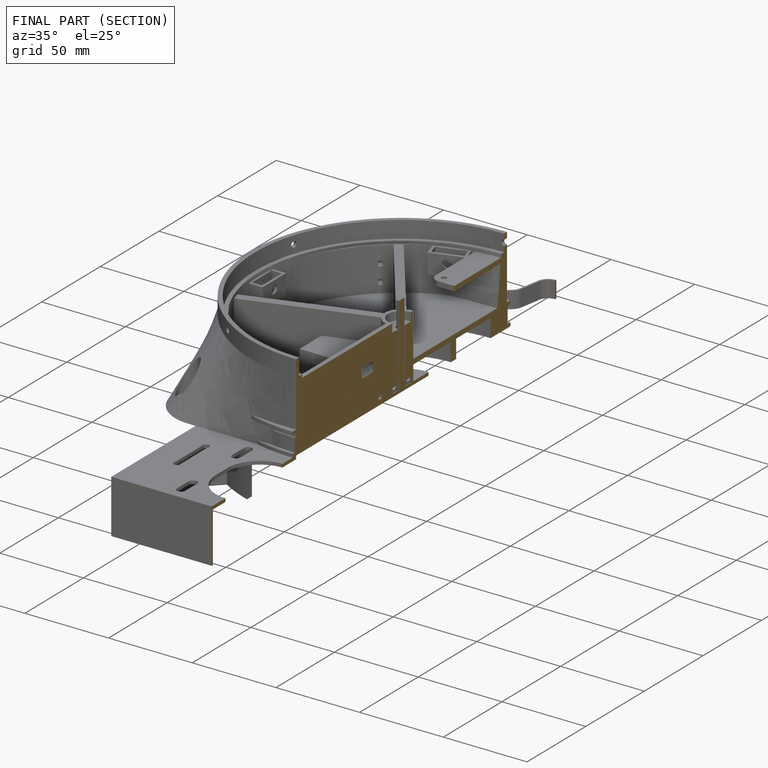
[diagram: finished part — half-section view (interior)]
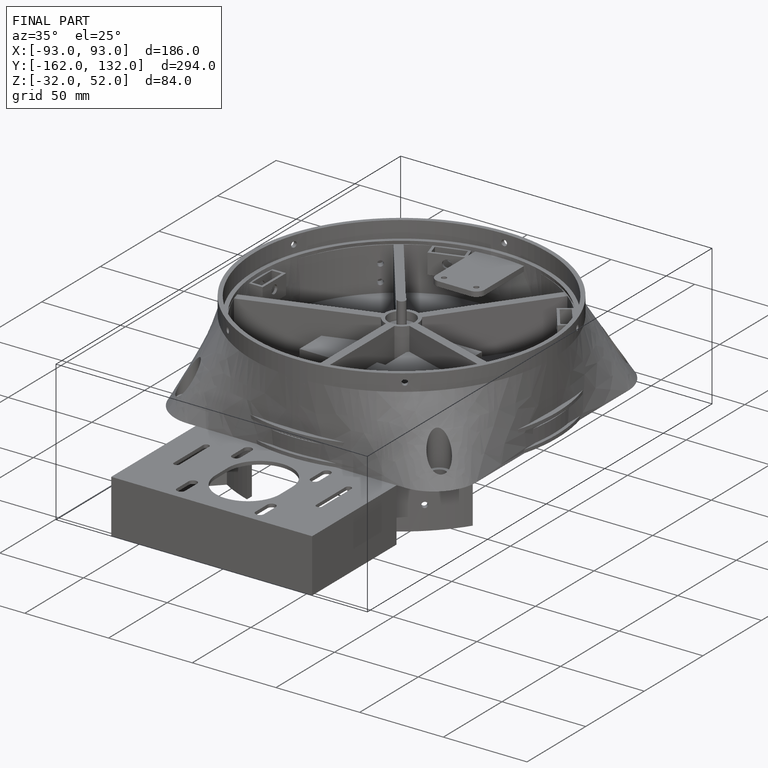
[diagram: finished part — iso view with bounding-box wireframe]
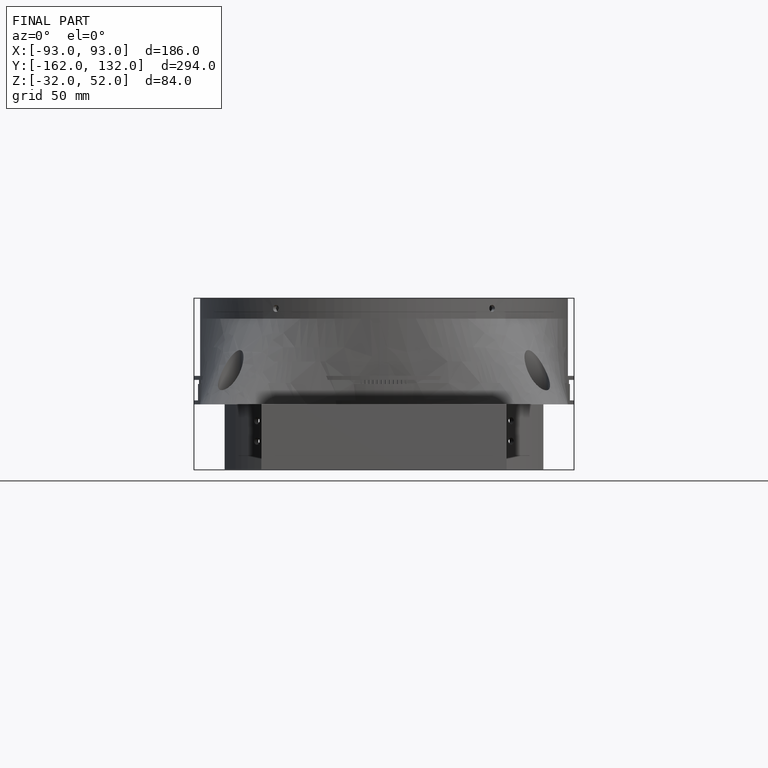
[diagram: finished part — front view with bounding-box wireframe]
